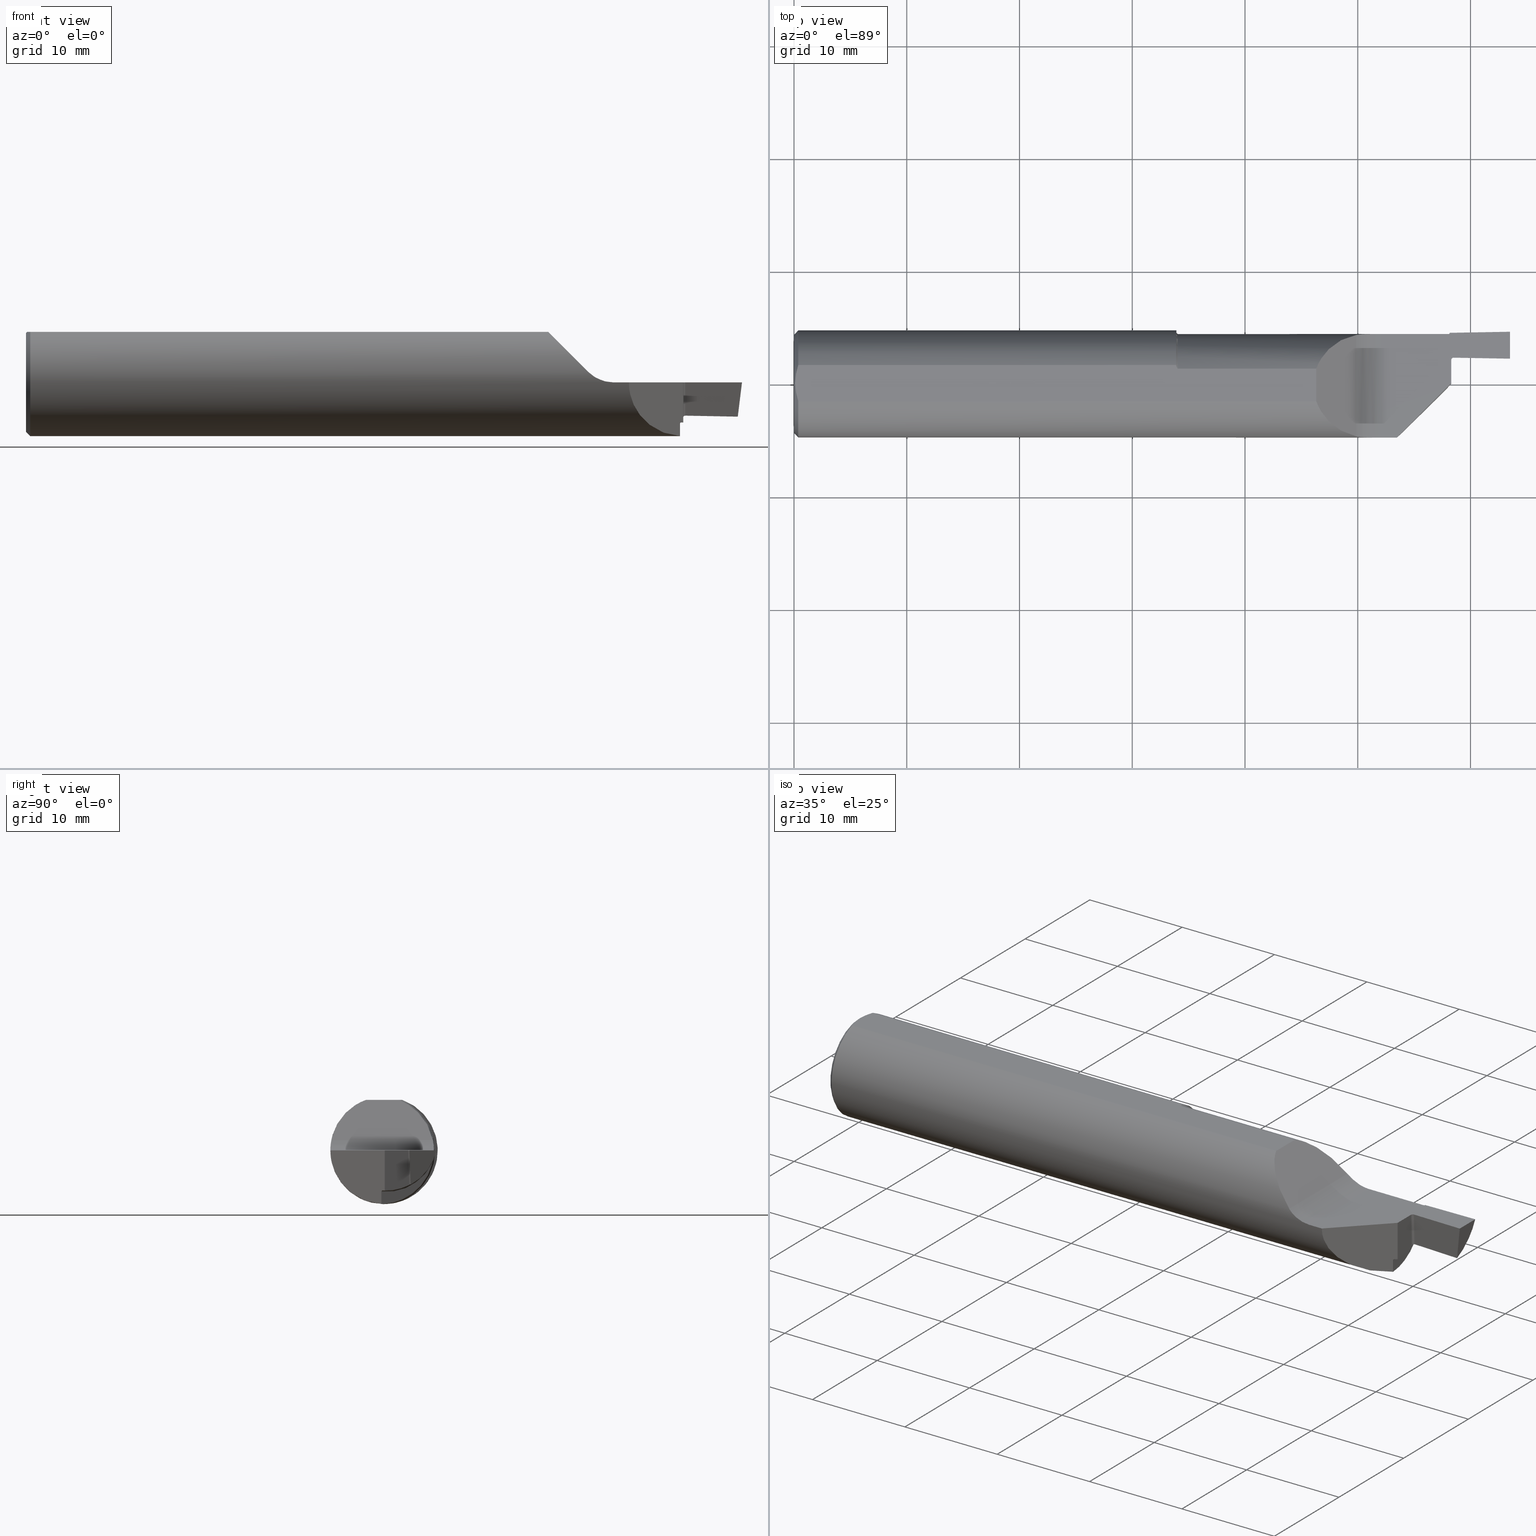
[diagram: canonical four-view strip — front | top / right | iso, engineering-drawing reading convention]
A machine part, canonical four-view strip (front | top / right | iso — engineering-drawing reading convention). The complete STEP part file that produces these views, byte-faithful:
ISO-10303-21;
HEADER;
FILE_DESCRIPTION (( 'STEP AP203' ),
    '1' );
FILE_NAME ('220103-FG375-093.STEP',
    '2024-06-10T23:36:27',
    ( '' ),
    ( '' ),
    'SwSTEP 2.0',
    'SolidWorks 2022',
    '' );
FILE_SCHEMA (( 'CONFIG_CONTROL_DESIGN' ));
ENDSEC;

DATA;
#1 = CARTESIAN_POINT ( 'NONE',  ( 2.283393038587651080, -0.008956961412348769108, 0.03500000000000000333 ) ) ;
#2 = FACE_OUTER_BOUND ( 'NONE', #832, .T. ) ;
#3 = DIRECTION ( 'NONE',  ( 0.7071067811865492381, 0.000000000000000000, -0.7071067811865459074 ) ) ;
#4 = DIRECTION ( 'NONE',  ( 0.7071067811865467956, 8.659560562354943952E-17, 0.7071067811865483499 ) ) ;
#5 = CARTESIAN_POINT ( 'NONE',  ( 2.284999999999999698, -0.01315076164021994516, 0.000000000000000000 ) ) ;
#6 = ADVANCED_FACE ( 'NONE', ( #578 ), #565, .F. ) ;
#7 = VERTEX_POINT ( 'NONE', #719 ) ;
#8 = EDGE_CURVE ( 'NONE', #564, #22, #153, .T. ) ;
#9 = AXIS2_PLACEMENT_3D ( 'NONE', #112, #381, #49 ) ;
#10 =( BOUNDED_CURVE ( )  B_SPLINE_CURVE ( 3, ( #740, #207, #790, #139 ),
 .UNSPECIFIED., .F., .T. ) 
 B_SPLINE_CURVE_WITH_KNOTS ( ( 4, 4 ),
 ( 1.544336988234594310, 2.023180629867346259 ),
 .UNSPECIFIED. ) 
 CURVE ( )  GEOMETRIC_REPRESENTATION_ITEM ( )  RATIONAL_B_SPLINE_CURVE ( ( 1.000000000000000000, 0.9809834981333445114, 0.9809834981333445114, 1.000000000000000000 ) ) 
 REPRESENTATION_ITEM ( '' )  );
#11 = LOCAL_TIME ( 16, 36, 27.00000000000000000, #305 ) ;
#12 = CARTESIAN_POINT ( 'NONE',  ( 2.300941329787759226, 0.09587476361423763471, -0.1159861687486509058 ) ) ;
#13 = CARTESIAN_POINT ( 'NONE',  ( 0.004994273251992769995, -0.02144446570098899885, 0.1763499999999999790 ) ) ;
#14 = DIRECTION ( 'NONE',  ( 1.000000000000000000, 0.000000000000000000, 0.000000000000000000 ) ) ;
#15 = VERTEX_POINT ( 'NONE', #755 ) ;
#16 = DIRECTION ( 'NONE',  ( -0.9998476951563914916, -0.01745240643726934937, -0.000000000000000000 ) ) ;
#17 = CARTESIAN_POINT ( 'NONE',  ( 1.338951377213943861, -0.002870465228317849431, -0.1873283842962036871 ) ) ;
#18 = ORIENTED_EDGE ( 'NONE', *, *, #813, .T. ) ;
#19 = EDGE_CURVE ( 'NONE', #495, #564, #426, .T. ) ;
#20 = CYLINDRICAL_SURFACE ( 'NONE', #807, 0.1749999999999999611 ) ;
#21 = CARTESIAN_POINT ( 'NONE',  ( 2.000000000000000000, 0.2873499999999999943, 6.488138984952624897E-16 ) ) ;
#22 = VERTEX_POINT ( 'NONE', #745 ) ;
#23 = DIRECTION ( 'NONE',  ( 0.000000000000000000, 0.000000000000000000, 1.000000000000000000 ) ) ;
#24 = VECTOR ( 'NONE', #550, 39.37007874015748143 ) ;
#25 = AXIS2_PLACEMENT_3D ( 'NONE', #730, #258, #129 ) ;
#26 = CARTESIAN_POINT ( 'NONE',  ( 2.035252298051418052, 0.1743543119172814015, 0.0008268482096370590503 ) ) ;
#27 = ADVANCED_FACE ( 'NONE', ( #145 ), #814, .F. ) ;
#28 = CARTESIAN_POINT ( 'NONE',  ( 1.337195659723047436, 0.007509920994524191089, -0.1872250261289547246 ) ) ;
#29 = ORIENTED_EDGE ( 'NONE', *, *, #813, .F. ) ;
#30 = CARTESIAN_POINT ( 'NONE',  ( 2.723046219305440552, 0.01475212378624846457, 0.03500000000000000333 ) ) ;
#31 = CARTESIAN_POINT ( 'NONE',  ( 2.281213636017340285, 0.1721177817524414400, -0.02890996178126952962 ) ) ;
#32 = ORIENTED_EDGE ( 'NONE', *, *, #613, .F. ) ;
#33 = CARTESIAN_POINT ( 'NONE',  ( 1.339391378728019832, 0.05054325299224062679, 0.1763499999999999512 ) ) ;
#34 = FACE_OUTER_BOUND ( 'NONE', #113, .T. ) ;
#35 = CARTESIAN_POINT ( 'NONE',  ( 1.334999999999999742, 0.05625817887700514802, -0.1791322750681638709 ) ) ;
#36 = EDGE_CURVE ( 'NONE', #340, #502, #809, .T. ) ;
#37 = ORIENTED_EDGE ( 'NONE', *, *, #412, .T. ) ;
#38 = APPLICATION_PROTOCOL_DEFINITION ( 'international standard', 'config_control_design', 1994, #380 ) ;
#39 = CARTESIAN_POINT ( 'NONE',  ( 2.051776695296636976, 0.1743492383597802509, 0.000000000000000000 ) ) ;
#40 = CIRCLE ( 'NONE', #608, 0.1875000000000001110 ) ;
#41 = CARTESIAN_POINT ( 'NONE',  ( 2.303210421468169233, 0.09583674312377118976, -0.1160315976012115252 ) ) ;
#42 = VERTEX_POINT ( 'NONE', #484 ) ;
#43 = PERSON_AND_ORGANIZATION ( #587, #698 ) ;
#44 = DIRECTION ( 'NONE',  ( 1.000000000000000000, 0.000000000000000000, 0.000000000000000000 ) ) ;
#45 = DIRECTION ( 'NONE',  ( -1.000000000000000000, -0.000000000000000000, -0.000000000000000000 ) ) ;
#46 = EDGE_LOOP ( 'NONE', ( #387, #427, #825, #449, #537 ) ) ;
#47 = CARTESIAN_POINT ( 'NONE',  ( 1.897454588124415586, 0.1576130183548816455, 0.1025454118755840249 ) ) ;
#48 = EDGE_CURVE ( 'NONE', #15, #631, #343, .T. ) ;
#49 = DIRECTION ( 'NONE',  ( 0.01745240643726858609, -0.9998476951563914916, 0.000000000000000000 ) ) ;
#50 = ORIENTED_EDGE ( 'NONE', *, *, #401, .F. ) ;
#51 = CARTESIAN_POINT ( 'NONE',  ( 0.000000000000000000, 0.000000000000000000, 0.000000000000000000 ) ) ;
#52 = EDGE_CURVE ( 'NONE', #150, #299, #556, .T. ) ;
#53 = ORIENTED_EDGE ( 'NONE', *, *, #183, .T. ) ;
#54 = DIRECTION ( 'NONE',  ( -1.000000000000000000, -0.000000000000000000, -0.000000000000000000 ) ) ;
#55 = B_SPLINE_CURVE_WITH_KNOTS ( 'NONE', 3,
 ( #276, #198, #72, #394, #338, #520 ),
 .UNSPECIFIED., .F., .F.,
 ( 4, 2, 4 ),
 ( 0.000000000000000000, 0.0001177800118684054018, 0.0002355600237368108037 ),
 .UNSPECIFIED. ) ;
#56 = ORIENTED_EDGE ( 'NONE', *, *, #761, .T. ) ;
#57 = DIRECTION ( 'NONE',  ( 0.000000000000000000, 1.000000000000000000, 0.000000000000000000 ) ) ;
#58 = DIRECTION ( 'NONE',  ( -0.7071067811865467956, 0.7071067811865483499, 0.000000000000000000 ) ) ;
#59 = EDGE_LOOP ( 'NONE', ( #265, #361, #211 ) ) ;
#60 = EDGE_CURVE ( 'NONE', #75, #687, #674, .T. ) ;
#61 = CARTESIAN_POINT ( 'NONE',  ( 2.286623822380981608, 0.1736596112874769227, -0.01887863862912420032 ) ) ;
#62 = CARTESIAN_POINT ( 'NONE',  ( 2.280279280228948657, 0.1694301354853124664, -0.04266691932675497484 ) ) ;
#63 = EDGE_LOOP ( 'NONE', ( #616, #777, #457, #781, #188, #322, #774, #416, #430 ) ) ;
#64 = DESIGN_CONTEXT ( 'detailed design', #156, 'design' ) ;
#65 = LOCAL_TIME ( 16, 36, 27.00000000000000000, #114 ) ;
#66 = PERSON_AND_ORGANIZATION_ROLE ( 'creator' ) ;
#67 = FACE_OUTER_BOUND ( 'NONE', #101, .T. ) ;
#68 = LINE ( 'NONE', #808, #522 ) ;
#69 = ORIENTED_EDGE ( 'NONE', *, *, #657, .F. ) ;
#70 = DIRECTION ( 'NONE',  ( 0.000000000000000000, 0.000000000000000000, -1.000000000000000000 ) ) ;
#71 = ADVANCED_FACE ( 'NONE', ( #603 ), #87, .T. ) ;
#72 = CARTESIAN_POINT ( 'NONE',  ( 2.284178583653680761, -0.008171416346319545013, -0.1413457714316157521 ) ) ;
#73 = ADVANCED_FACE ( 'NONE', ( #350 ), #749, .F. ) ;
#74 = DIRECTION ( 'NONE',  ( 0.000000000000000000, 0.000000000000000000, 1.000000000000000000 ) ) ;
#75 = VERTEX_POINT ( 'NONE', #274 ) ;
#76 = DIRECTION ( 'NONE',  ( 0.9998476951563912696, -0.01745240643727495600, 0.000000000000000000 ) ) ;
#77 = CARTESIAN_POINT ( 'NONE',  ( 1.846378452100291501, -0.1266201564974553662, 0.1536215478997087214 ) ) ;
#78 = DIRECTION ( 'NONE',  ( -1.000000000000000000, 0.000000000000000000, -0.000000000000000000 ) ) ;
#79 = EDGE_LOOP ( 'NONE', ( #320, #18, #526, #117 ) ) ;
#80 = AXIS2_PLACEMENT_3D ( 'NONE', #847, #138, #201 ) ;
#81 = CARTESIAN_POINT ( 'NONE',  ( 2.283393038587651080, -0.008956961412348769108, -0.1871357671378127974 ) ) ;
#82 = DIRECTION ( 'NONE',  ( -0.0006094513490877512219, 0.000000000000000000, 0.9999998142845092364 ) ) ;
#83 = CARTESIAN_POINT ( 'NONE',  ( 1.339074979391454923, -0.003245713992497605265, -0.1873222229057585064 ) ) ;
#84 = EDGE_CURVE ( 'NONE', #249, #505, #118, .T. ) ;
#85 = ORIENTED_EDGE ( 'NONE', *, *, #450, .F. ) ;
#86 = CARTESIAN_POINT ( 'NONE',  ( 2.295073310042312187, 0.08798154968022506295, -0.1202885657848134782 ) ) ;
#87 = PLANE ( 'NONE',  #107 ) ;
#88 = VERTEX_POINT ( 'NONE', #536 ) ;
#89 = CARTESIAN_POINT ( 'NONE',  ( 1.340000000000000080, -0.01315076164021994516, 0.000000000000000000 ) ) ;
#90 = CARTESIAN_POINT ( 'NONE',  ( 2.285212632768077512, 0.1732920003003683707, -0.01992593244285463874 ) ) ;
#91 = CARTESIAN_POINT ( 'NONE',  ( 0.000000000000000000, -0.1873499999999999888, 0.000000000000000000 ) ) ;
#92 = EDGE_LOOP ( 'NONE', ( #225, #369, #584, #255 ) ) ;
#93 = CARTESIAN_POINT ( 'NONE',  ( 1.335371528663762408, 0.05848268389675807810, 0.1763499999999999790 ) ) ;
#94 = VECTOR ( 'NONE', #541, 39.37007874015748143 ) ;
#95 = CARTESIAN_POINT ( 'NONE',  ( 2.000000000000000000, -0.2873499999999999943, 0.000000000000000000 ) ) ;
#96 = ORIENTED_EDGE ( 'NONE', *, *, #597, .F. ) ;
#97 = DIRECTION ( 'NONE',  ( 0.000000000000000000, 0.000000000000000000, 1.000000000000000000 ) ) ;
#98 = ADVANCED_FACE ( 'NONE', ( #355 ), #546, .T. ) ;
#99 = CARTESIAN_POINT ( 'NONE',  ( 2.035390929681094807, -0.1873549854116181856, 0.0008110107679984991354 ) ) ;
#100 = ADVANCED_FACE ( 'NONE', ( #680 ), #306, .F. ) ;
#101 = EDGE_LOOP ( 'NONE', ( #171, #636, #56, #219, #612, #464, #37, #392, #279, #110, #146, #32, #518 ) ) ;
#102 = CARTESIAN_POINT ( 'NONE',  ( 1.846487386027261035, 0.1137732605392144658, 0.1535126139727385763 ) ) ;
#103 = CARTESIAN_POINT ( 'NONE',  ( 0.000000000000000000, -0.06325108694718213631, 0.1763499999999999790 ) ) ;
#104 = CARTESIAN_POINT ( 'NONE',  ( 2.295005047996913738, 0.08407081971851022850, -0.008282853067502449554 ) ) ;
#105 = ORIENTED_EDGE ( 'NONE', *, *, #720, .T. ) ;
#106 = DATE_AND_TIME ( #709, #65 ) ;
#107 = AXIS2_PLACEMENT_3D ( 'NONE', #21, #277, #3 ) ;
#108 = DIRECTION ( 'NONE',  ( -1.000000000000000000, -0.000000000000000000, -0.000000000000000000 ) ) ;
#109 = FACE_OUTER_BOUND ( 'NONE', #788, .T. ) ;
#110 = ORIENTED_EDGE ( 'NONE', *, *, #401, .T. ) ;
#111 = EDGE_CURVE ( 'NONE', #325, #461, #605, .T. ) ;
#112 = CARTESIAN_POINT ( 'NONE',  ( 2.288112471912410406, 0.007160326986036305401, 0.03500000000000000333 ) ) ;
#113 = EDGE_LOOP ( 'NONE', ( #216, #246, #485, #85, #233, #837 ) ) ;
#114 = COORDINATED_UNIVERSAL_TIME_OFFSET ( 8, 0, .BEHIND. ) ;
#115 = CC_DESIGN_DATE_AND_TIME_ASSIGNMENT ( #451, #172, ( #801 ) ) ;
#116 = CARTESIAN_POINT ( 'NONE',  ( 2.294999999999999929, 0.002650000000000004349, -0.1399387451215776956 ) ) ;
#117 = ORIENTED_EDGE ( 'NONE', *, *, #304, .F. ) ;
#118 = B_SPLINE_CURVE_WITH_KNOTS ( 'NONE', 3,
 ( #532, #140, #686, #208 ),
 .UNSPECIFIED., .F., .F.,
 ( 4, 4 ),
 ( 0.002381199190277828726, 0.002506274907967739364 ),
 .UNSPECIFIED. ) ;
#119 = CARTESIAN_POINT ( 'NONE',  ( 2.104999999999999538, -0.1873499999999999888, -6.829619984160658046E-17 ) ) ;
#120 = AXIS2_PLACEMENT_3D ( 'NONE', #452, #833, #718 ) ;
#121 = VERTEX_POINT ( 'NONE', #433 ) ;
#122 = SECURITY_CLASSIFICATION_LEVEL ( 'unclassified' ) ;
#123 = DIRECTION ( 'NONE',  ( 0.000000000000000000, 0.000000000000000000, 1.000000000000000000 ) ) ;
#124 = CARTESIAN_POINT ( 'NONE',  ( 2.281794755679821041, 0.08260860505239303597, -0.1832479998057743309 ) ) ;
#125 = ORIENTED_EDGE ( 'NONE', *, *, #823, .T. ) ;
#126 = MANIFOLD_SOLID_BREP ( 'BF80796C-635B-4bd6-BBB9-54CE6A8BF315-GAAFaceID9', #362 ) ;
#127 = EDGE_CURVE ( 'NONE', #762, #542, #675, .T. ) ;
#128 = B_SPLINE_CURVE_WITH_KNOTS ( 'NONE', 3,
 ( #576, #301, #513, #308 ),
 .UNSPECIFIED., .F., .F.,
 ( 4, 4 ),
 ( 0.000000000000000000, 3.064243645287865564E-05 ),
 .UNSPECIFIED. ) ;
#129 = DIRECTION ( 'NONE',  ( 0.000000000000000000, -0.9993910123954978797, -0.03489418781261178354 ) ) ;
#130 = CARTESIAN_POINT ( 'NONE',  ( 2.485325741300552949, 0.09277947384183525548, -0.1195122464220158692 ) ) ;
#131 = ORIENTED_EDGE ( 'NONE', *, *, #436, .F. ) ;
#132 = CARTESIAN_POINT ( 'NONE',  ( 2.286851938762125336, 0.1737875172621722031, -0.01849460268407950372 ) ) ;
#133 = DIRECTION ( 'NONE',  ( 0.000000000000000000, 1.000000000000000000, 0.000000000000000000 ) ) ;
#134 = ORIENTED_EDGE ( 'NONE', *, *, #475, .F. ) ;
#135 = AXIS2_PLACEMENT_3D ( 'NONE', #409, #805, #78 ) ;
#136 = PRODUCT_DEFINITION_FORMATION_WITH_SPECIFIED_SOURCE ( 'ANY', '', #700, .NOT_KNOWN. ) ;
#137 = ADVANCED_FACE ( 'NONE', ( #109 ), #491, .F. ) ;
#138 = DIRECTION ( 'NONE',  ( -1.000000000000000000, -0.000000000000000000, -0.000000000000000000 ) ) ;
#139 = CARTESIAN_POINT ( 'NONE',  ( 2.294999999999999929, 0.08378666752628630143, -0.1223963044851301141 ) ) ;
#140 = CARTESIAN_POINT ( 'NONE',  ( 1.335000000000000187, 0.06629317938995302195, 0.1752365688409875943 ) ) ;
#141 = ORIENTED_EDGE ( 'NONE', *, *, #786, .T. ) ;
#142 = DIRECTION ( 'NONE',  ( 1.000000000000000000, 0.000000000000000000, 0.000000000000000000 ) ) ;
#143 = EDGE_CURVE ( 'NONE', #299, #502, #767, .T. ) ;
#144 = CARTESIAN_POINT ( 'NONE',  ( 0.000000000000000000, 2.110678758330468070E-17, 0.1723500000000004195 ) ) ;
#145 = FACE_OUTER_BOUND ( 'NONE', #841, .T. ) ;
#146 = ORIENTED_EDGE ( 'NONE', *, *, #84, .F. ) ;
#147 = CARTESIAN_POINT ( 'NONE',  ( 2.051776695296636976, 0.2873499999999999943, 0.1250000000000000000 ) ) ;
#148 = EDGE_CURVE ( 'NONE', #395, #481, #649, .T. ) ;
#149 = DIRECTION ( 'NONE',  ( 0.000000000000000000, -0.03490480639812536257, 0.9993906415863165194 ) ) ;
#150 = VERTEX_POINT ( 'NONE', #41 ) ;
#151 = DIRECTION ( 'NONE',  ( 0.000000000000000000, 1.000000000000000000, 0.000000000000000000 ) ) ;
#152 = CARTESIAN_POINT ( 'NONE',  ( 1.963388347648318710, 0.1707400671470789832, 0.03661165235168143545 ) ) ;
#153 = LINE ( 'NONE', #218, #806 ) ;
#154 = ORIENTED_EDGE ( 'NONE', *, *, #327, .F. ) ;
#155 = EDGE_CURVE ( 'NONE', #664, #325, #504, .T. ) ;
#156 = APPLICATION_CONTEXT ( 'configuration controlled 3d designs of mechanical parts and assemblies' ) ;
#157 = CARTESIAN_POINT ( 'NONE',  ( 2.295001483111417162, 0.08393638946052463246, -0.0002790132549058363951 ) ) ;
#158 = CARTESIAN_POINT ( 'NONE',  ( 1.339399018889529280, -0.003959314961772966192, -0.1873084986825458431 ) ) ;
#159 = ORIENTED_EDGE ( 'NONE', *, *, #52, .F. ) ;
#160 = DIRECTION ( 'NONE',  ( 0.01745240643726858609, -0.9998476951563914916, 0.000000000000000000 ) ) ;
#161 = CARTESIAN_POINT ( 'NONE',  ( 1.812499999999999778, -0.004437576883792758962, -0.1872974383471392446 ) ) ;
#162 = ORIENTED_EDGE ( 'NONE', *, *, #356, .T. ) ;
#163 = EDGE_CURVE ( 'NONE', #481, #7, #454, .T. ) ;
#164 = CARTESIAN_POINT ( 'NONE',  ( 1.336737058446424209, 0.05385394031618935540, 0.1763500000000000068 ) ) ;
#165 = AXIS2_PLACEMENT_3D ( 'NONE', #418, #545, #684 ) ;
#166 = EDGE_CURVE ( 'NONE', #348, #421, #496, .T. ) ;
#167 = CARTESIAN_POINT ( 'NONE',  ( 1.336913895729895607, 0.01061167438636866772, -0.1870750754728970622 ) ) ;
#168 = ORIENTED_EDGE ( 'NONE', *, *, #204, .F. ) ;
#169 = DIRECTION ( 'NONE',  ( 1.000000000000000000, 0.000000000000000000, 0.000000000000000000 ) ) ;
#170 = CARTESIAN_POINT ( 'NONE',  ( 2.485325741300552949, 0.09277947384183525548, -0.1195122464220158692 ) ) ;
#171 = ORIENTED_EDGE ( 'NONE', *, *, #155, .F. ) ;
#172 = DATE_TIME_ROLE ( 'creation_date' ) ;
#173 = LINE ( 'NONE', #103, #483 ) ;
#174 = CARTESIAN_POINT ( 'NONE',  ( 2.285070978652790963, 0.1732857018005488914, -0.01994229615775050535 ) ) ;
#175 = EDGE_CURVE ( 'NONE', #732, #594, #540, .T. ) ;
#176 = ORIENTED_EDGE ( 'NONE', *, *, #321, .F. ) ;
#177 = CARTESIAN_POINT ( 'NONE',  ( 1.337958805214830571, 0.05174923270990745144, 0.1763499999999999235 ) ) ;
#178 = AXIS2_PLACEMENT_3D ( 'NONE', #223, #760, #610 ) ;
#179 = CARTESIAN_POINT ( 'NONE',  ( 1.335009689054889037, 0.06325108694718309388, 0.1763499999999996737 ) ) ;
#180 = SECURITY_CLASSIFICATION ( '', '', #122 ) ;
#181 = CARTESIAN_POINT ( 'NONE',  ( 2.282316953646207569, 0.1728069946408152813, -0.02401930439937509376 ) ) ;
#182 = ORIENTED_EDGE ( 'NONE', *, *, #191, .F. ) ;
#183 = EDGE_CURVE ( 'NONE', #75, #325, #40, .T. ) ;
#184 = PERSON_AND_ORGANIZATION_ROLE ( 'creator' ) ;
#185 = CARTESIAN_POINT ( 'NONE',  ( 2.290536641306539334, -0.001813358693460846195, -0.1397814340830136892 ) ) ;
#186 = EDGE_LOOP ( 'NONE', ( #853, #606, #237, #650 ) ) ;
#187 = DIRECTION ( 'NONE',  ( -0.0006090802009083879243, -0.03489418134011375294, 0.9993908270190957621 ) ) ;
#188 = ORIENTED_EDGE ( 'NONE', *, *, #559, .T. ) ;
#189 =( BOUNDED_CURVE ( )  B_SPLINE_CURVE ( 3, ( #500, #185, #240, #116 ),
 .UNSPECIFIED., .F., .F. ) 
 B_SPLINE_CURVE_WITH_KNOTS ( ( 4, 4 ),
 ( 1.506729512058387010, 1.544336988234593422 ),
 .UNSPECIFIED. ) 
 CURVE ( )  GEOMETRIC_REPRESENTATION_ITEM ( )  RATIONAL_B_SPLINE_CURVE ( ( 1.000000000000000000, 0.9998821432840196977, 0.9998821432840196977, 1.000000000000000000 ) ) 
 REPRESENTATION_ITEM ( '' )  );
#190 = CALENDAR_DATE ( 2024, 10, 6 ) ;
#191 = EDGE_CURVE ( 'NONE', #510, #732, #448, .T. ) ;
#192 = CARTESIAN_POINT ( 'NONE',  ( 2.295004234609788085, 0.08404793412690703125, -0.006948231403009231914 ) ) ;
#193 = CARTESIAN_POINT ( 'NONE',  ( 2.294999999999999929, 0.002650000000000004349, -0.1873499999999999888 ) ) ;
#194 = AXIS2_PLACEMENT_3D ( 'NONE', #503, #44, #316 ) ;
#195 = ORIENTED_EDGE ( 'NONE', *, *, #166, .F. ) ;
#196 =( GEOMETRIC_REPRESENTATION_CONTEXT ( 3 ) GLOBAL_UNCERTAINTY_ASSIGNED_CONTEXT ( ( #346 ) ) GLOBAL_UNIT_ASSIGNED_CONTEXT ( ( #575, #567, #300 ) ) REPRESENTATION_CONTEXT ( 'NONE', 'WORKASPACE' ) );
#197 = CARTESIAN_POINT ( 'NONE',  ( 2.286046350888864875, 0.1734291575718139300, -0.01955485721375198674 ) ) ;
#198 = CARTESIAN_POINT ( 'NONE',  ( 2.283393038587651080, -0.008956961412348769108, -0.1427136421016734213 ) ) ;
#199 = VERTEX_POINT ( 'NONE', #857 ) ;
#200 = PERSON_AND_ORGANIZATION ( #587, #698 ) ;
#201 = DIRECTION ( 'NONE',  ( 0.000000000000000000, 0.000000000000000000, 1.000000000000000000 ) ) ;
#202 = CARTESIAN_POINT ( 'NONE',  ( 1.963388347648318932, -0.1837378823544007778, 0.03661165235168151871 ) ) ;
#203 = ORIENTED_EDGE ( 'NONE', *, *, #256, .F. ) ;
#204 = EDGE_CURVE ( 'NONE', #495, #770, #10, .T. ) ;
#205 = DATE_AND_TIME ( #397, #685 ) ;
#206 = CARTESIAN_POINT ( 'NONE',  ( 2.288821424592997200, 0.1757024655210977782, -0.01227120754215230841 ) ) ;
#207 = CARTESIAN_POINT ( 'NONE',  ( 2.295000000000000373, 0.03084718834612590332, -0.1406848845743961240 ) ) ;
#208 = CARTESIAN_POINT ( 'NONE',  ( 1.335009689054889037, 0.06325108694718309388, 0.1763499999999996737 ) ) ;
#209 = AXIS2_PLACEMENT_3D ( 'NONE', #744, #399, #531 ) ;
#210 = VECTOR ( 'NONE', #76, 39.37007874015748854 ) ;
#211 = ORIENTED_EDGE ( 'NONE', *, *, #127, .F. ) ;
#212 = EDGE_CURVE ( 'NONE', #7, #664, #701, .T. ) ;
#213 = DIRECTION ( 'NONE',  ( -0.9998476951563914916, -0.01745240643726934937, 0.000000000000000000 ) ) ;
#214 = DIRECTION ( 'NONE',  ( 0.7071067811865483499, 0.7071067811865467956, 0.000000000000000000 ) ) ;
#215 = CARTESIAN_POINT ( 'NONE',  ( 2.303379501196029633, 0.1055233142454422290, -0.3934609555193291364 ) ) ;
#216 = ORIENTED_EDGE ( 'NONE', *, *, #460, .T. ) ;
#217 = CARTESIAN_POINT ( 'NONE',  ( 1.823649999999999771, 0.05054325299224043250, 0.1763499999999999790 ) ) ;
#218 = CARTESIAN_POINT ( 'NONE',  ( 2.294999999999999929, -0.2873499999999999943, 0.000000000000000000 ) ) ;
#219 = ORIENTED_EDGE ( 'NONE', *, *, #191, .T. ) ;
#220 = DIRECTION ( 'NONE',  ( -0.000000000000000000, -1.000000000000000000, -0.000000000000000000 ) ) ;
#221 = CARTESIAN_POINT ( 'NONE',  ( 0.000000000000000000, 0.000000000000000000, -0.1723500000000004195 ) ) ;
#222 = ADVANCED_FACE ( 'NONE', ( #2 ), #413, .F. ) ;
#223 = CARTESIAN_POINT ( 'NONE',  ( 2.288112471912410406, 0.007160326986036302799, 0.03500000000000000333 ) ) ;
#224 = ADVANCED_BREP_SHAPE_REPRESENTATION ( '220103-FG375-093', ( #126, #405 ), #196 ) ;
#225 = ORIENTED_EDGE ( 'NONE', *, *, #19, .F. ) ;
#226 = AXIS2_PLACEMENT_3D ( 'NONE', #147, #151, #819 ) ;
#227 = CARTESIAN_POINT ( 'NONE',  ( 1.335009689054889037, 0.06325108694718309388, 0.1763499999999996737 ) ) ;
#228 = CARTESIAN_POINT ( 'NONE',  ( 1.339598998625805004, -0.004437576883793187439, -0.1872974383471391890 ) ) ;
#229 = ORIENTED_EDGE ( 'NONE', *, *, #19, .T. ) ;
#230 = CARTESIAN_POINT ( 'NONE',  ( 2.104999999999999538, -0.1873499999999999888, -6.829619984160658046E-17 ) ) ;
#231 = CARTESIAN_POINT ( 'NONE',  ( 1.335166595942603118, 0.04439214968827082108, -0.1824345190479061685 ) ) ;
#232 = EDGE_CURVE ( 'NONE', #423, #382, #55, .T. ) ;
#233 = ORIENTED_EDGE ( 'NONE', *, *, #294, .F. ) ;
#234 = ADVANCED_FACE ( 'NONE', ( #593 ), #263, .F. ) ;
#235 = LINE ( 'NONE', #292, #566 ) ;
#236 = DIRECTION ( 'NONE',  ( 0.000000000000000000, 0.000000000000000000, -1.000000000000000000 ) ) ;
#237 = ORIENTED_EDGE ( 'NONE', *, *, #148, .T. ) ;
#238 = PERSON_AND_ORGANIZATION ( #587, #698 ) ;
#239 = CIRCLE ( 'NONE', #738, 0.008000000000000024453 ) ;
#240 = CARTESIAN_POINT ( 'NONE',  ( 2.292767567870056311, 0.0004175678700561035340, -0.1398807027853394280 ) ) ;
#241 = CARTESIAN_POINT ( 'NONE',  ( 2.284087404967629187, 0.1732350849020085903, -0.02041404061935647371 ) ) ;
#242 = ORIENTED_EDGE ( 'NONE', *, *, #60, .F. ) ;
#243 = PERSON_AND_ORGANIZATION ( #587, #698 ) ;
#244 = CARTESIAN_POINT ( 'NONE',  ( 2.295039367740882241, 0.08602829363184989753, -0.0002059503887036876911 ) ) ;
#245 = CARTESIAN_POINT ( 'NONE',  ( 1.336187288558007502, 0.01991515597133086679, -0.1863922880607652710 ) ) ;
#246 = ORIENTED_EDGE ( 'NONE', *, *, #127, .T. ) ;
#247 = CARTESIAN_POINT ( 'NONE',  ( 2.303139705841341200, 0.09178544757610611338, -6.189343110645596508E-17 ) ) ;
#248 = DIRECTION ( 'NONE',  ( -1.000000000000000000, -0.000000000000000000, -0.000000000000000000 ) ) ;
#249 = VERTEX_POINT ( 'NONE', #324 ) ;
#250 = CARTESIAN_POINT ( 'NONE',  ( 2.298951142015535076, 0.09099751733156083433, -3.006366610617396904E-05 ) ) ;
#251 = AXIS2_PLACEMENT_3D ( 'NONE', #89, #758, #23 ) ;
#252 = ORIENTED_EDGE ( 'NONE', *, *, #625, .F. ) ;
#253 =( BOUNDED_CURVE ( )  B_SPLINE_CURVE ( 3, ( #474, #267, #798, #668 ),
 .UNSPECIFIED., .F., .T. ) 
 B_SPLINE_CURVE_WITH_KNOTS ( ( 4, 4 ),
 ( 1.594484567641964334, 1.618623265893552432 ),
 .UNSPECIFIED. ) 
 CURVE ( )  GEOMETRIC_REPRESENTATION_ITEM ( )  RATIONAL_B_SPLINE_CURVE ( ( 1.000000000000000000, 0.9999514441933211595, 0.9999514441933211595, 1.000000000000000000 ) ) 
 REPRESENTATION_ITEM ( '' )  );
#254 = LENGTH_MEASURE_WITH_UNIT ( LENGTH_MEASURE( 0.02539999999999999897 ), #851 );
#255 = ORIENTED_EDGE ( 'NONE', *, *, #8, .F. ) ;
#256 = EDGE_CURVE ( 'NONE', #88, #687, #586, .T. ) ;
#257 = EDGE_CURVE ( 'NONE', #631, #340, #712, .T. ) ;
#258 = DIRECTION ( 'NONE',  ( -0.0006090802009083879243, -0.03489418134011375294, 0.9993908270190957621 ) ) ;
#259 = CARTESIAN_POINT ( 'NONE',  ( 1.823649999999999771, -0.06325108694718213631, 0.1763499999999999790 ) ) ;
#260 = ORIENTED_EDGE ( 'NONE', *, *, #143, .F. ) ;
#261 = CARTESIAN_POINT ( 'NONE',  ( 1.335000000000000187, 0.000000000000000000, 0.000000000000000000 ) ) ;
#262 = VECTOR ( 'NONE', #442, 39.37007874015748143 ) ;
#263 = PLANE ( 'NONE',  #579 ) ;
#264 = CIRCLE ( 'NONE', #635, 0.1873499999999999888 ) ;
#265 = ORIENTED_EDGE ( 'NONE', *, *, #839, .T. ) ;
#266 = TOROIDAL_SURFACE ( 'NONE', #251, 0.1925000000000001432, 0.005000000000000049544 ) ;
#267 = CARTESIAN_POINT ( 'NONE',  ( 2.283340458535739081, -0.005944652255764125079, -0.1872617317037810758 ) ) ;
#268 = EDGE_CURVE ( 'NONE', #770, #22, #678, .T. ) ;
#269 = CARTESIAN_POINT ( 'NONE',  ( 1.340000000000000080, -0.004437576883793904747, -0.1872974383471392446 ) ) ;
#270 = EDGE_LOOP ( 'NONE', ( #379, #96, #443, #623, #229, #708 ) ) ;
#271 = PERSON_AND_ORGANIZATION ( #587, #698 ) ;
#272 = CARTESIAN_POINT ( 'NONE',  ( 2.283113233436628420, 0.007073064953849954317, 0.03500000000000000333 ) ) ;
#273 = DIRECTION ( 'NONE',  ( -0.000000000000000000, -0.000000000000000000, 1.000000000000000000 ) ) ;
#274 = CARTESIAN_POINT ( 'NONE',  ( 1.340000000000000080, 0.05054325299224017576, 0.1763500000000000068 ) ) ;
#275 = CARTESIAN_POINT ( 'NONE',  ( 2.295002345047223891, 0.08398157355072718988, -0.002944330584369588520 ) ) ;
#276 = CARTESIAN_POINT ( 'NONE',  ( 2.283393038587651080, -0.008956961412348769108, -0.1442845781537732130 ) ) ;
#277 = DIRECTION ( 'NONE',  ( 0.7071067811865459074, -0.000000000000000000, 0.7071067811865492381 ) ) ;
#278 = AXIS2_PLACEMENT_3D ( 'NONE', #644, #447, #629 ) ;
#279 = ORIENTED_EDGE ( 'NONE', *, *, #561, .T. ) ;
#280 = FACE_OUTER_BOUND ( 'NONE', #713, .T. ) ;
#281 = CARTESIAN_POINT ( 'NONE',  ( 0.01157250466904289656, -0.05309883057899358189, 0.1763500000000000068 ) ) ;
#282 = CARTESIAN_POINT ( 'NONE',  ( 1.340000000000000080, -0.004437576883793904747, -0.1872974383471392446 ) ) ;
#283 = FACE_OUTER_BOUND ( 'NONE', #63, .T. ) ;
#284 = CARTESIAN_POINT ( 'NONE',  ( 0.003999999999999476197, 2.550090563692220756E-17, 0.1763499999999999790 ) ) ;
#285 = CARTESIAN_POINT ( 'NONE',  ( 1.338620484590426152, -0.001745530422709880031, -0.1873433696669191129 ) ) ;
#286 = ORIENTED_EDGE ( 'NONE', *, *, #344, .T. ) ;
#287 = CARTESIAN_POINT ( 'NONE',  ( 0.9958286716179119979, -0.01315076164021992781, 0.000000000000000000 ) ) ;
#288 = DIRECTION ( 'NONE',  ( 0.01744177490282172033, 0.9992386149554827179, 0.03489949670250104552 ) ) ;
#289 = ORIENTED_EDGE ( 'NONE', *, *, #334, .T. ) ;
#290 = CIRCLE ( 'NONE', #403, 0.1873499999999999888 ) ;
#291 = AXIS2_PLACEMENT_3D ( 'NONE', #287, #695, #349 ) ;
#292 = CARTESIAN_POINT ( 'NONE',  ( 2.449477741060713587, 0.1036021726831220791, -0.4114707791253824354 ) ) ;
#293 = CARTESIAN_POINT ( 'NONE',  ( 2.288308009098484419, -0.004041990901515791351, -0.1396409741130502091 ) ) ;
#294 = EDGE_CURVE ( 'NONE', #22, #521, #239, .T. ) ;
#295 = DIRECTION ( 'NONE',  ( -1.000000000000000000, -0.000000000000000000, -0.000000000000000000 ) ) ;
#296 = VERTEX_POINT ( 'NONE', #673 ) ;
#297 = FACE_OUTER_BOUND ( 'NONE', #815, .T. ) ;
#298 = CARTESIAN_POINT ( 'NONE',  ( 2.280279280228948657, 0.1694301354853124664, -0.04266691932675497484 ) ) ;
#299 = VERTEX_POINT ( 'NONE', #130 ) ;
#300 =( NAMED_UNIT ( * ) SI_UNIT ( $, .STERADIAN. ) SOLID_ANGLE_UNIT ( ) );
#301 = CARTESIAN_POINT ( 'NONE',  ( 2.294999999999999929, 0.08415348288747674654, -0.1222180596927485013 ) ) ;
#302 = CARTESIAN_POINT ( 'NONE',  ( 1.338007575457989207, 0.001316809534356252120, -0.1873516452513924180 ) ) ;
#303 = ORIENTED_EDGE ( 'NONE', *, *, #862, .T. ) ;
#304 = EDGE_CURVE ( 'NONE', #150, #521, #342, .T. ) ;
#305 = COORDINATED_UNIVERSAL_TIME_OFFSET ( 8, 0, .BEHIND. ) ;
#306 = TOROIDAL_SURFACE ( 'NONE', #178, 0.1799999999999999656, 0.005000000000000000104 ) ;
#307 = CC_DESIGN_APPROVAL ( #618, ( #180 ) ) ;
#308 = CARTESIAN_POINT ( 'NONE',  ( 2.295074270076920886, 0.08487423600064146478, -0.1218638095382053310 ) ) ;
#309 = ORIENTED_EDGE ( 'NONE', *, *, #84, .T. ) ;
#310 =( BOUNDED_CURVE ( )  B_SPLINE_CURVE ( 3, ( #445, #47, #102, #842 ),
 .UNSPECIFIED., .F., .F. ) 
 B_SPLINE_CURVE_WITH_KNOTS ( ( 4, 4 ),
 ( 4.908913714375442439, 5.936585895212762587 ),
 .UNSPECIFIED. ) 
 CURVE ( )  GEOMETRIC_REPRESENTATION_ITEM ( )  RATIONAL_B_SPLINE_CURVE ( ( 1.000000000000000000, 0.9139102658081098562, 0.9139102658081098562, 1.000000000000000000 ) ) 
 REPRESENTATION_ITEM ( '' )  );
#311 = DATE_AND_TIME ( #512, #331 ) ;
#312 = EDGE_CURVE ( 'NONE', #421, #348, #468, .T. ) ;
#313 = LINE ( 'NONE', #843, #318 ) ;
#314 = CARTESIAN_POINT ( 'NONE',  ( 2.280263259456356995, 0.1703479649310262467, -0.03873933031280969025 ) ) ;
#315 = EDGE_LOOP ( 'NONE', ( #176, #195, #105, #134, #529 ) ) ;
#316 = DIRECTION ( 'NONE',  ( 0.000000000000000000, 0.000000000000000000, -1.000000000000000000 ) ) ;
#317 = ORIENTED_EDGE ( 'NONE', *, *, #786, .F. ) ;
#318 = VECTOR ( 'NONE', #187, 39.37007874015748143 ) ;
#319 = CARTESIAN_POINT ( 'NONE',  ( 2.295938313768146610, 0.08809173989208883560, -0.0001333563681705186507 ) ) ;
#320 = ORIENTED_EDGE ( 'NONE', *, *, #52, .T. ) ;
#321 = EDGE_CURVE ( 'NONE', #421, #42, #863, .T. ) ;
#322 = ORIENTED_EDGE ( 'NONE', *, *, #163, .T. ) ;
#323 = CARTESIAN_POINT ( 'NONE',  ( 2.285671421012806181, 0.1733171957776447614, -0.01987394689501126299 ) ) ;
#324 = CARTESIAN_POINT ( 'NONE',  ( 1.335000000000000187, 0.06780158507429057124, 0.1746509878626906764 ) ) ;
#325 = VERTEX_POINT ( 'NONE', #269 ) ;
#326 = APPROVAL_DATE_TIME ( #205, #618 ) ;
#327 = EDGE_CURVE ( 'NONE', #594, #88, #757, .T. ) ;
#328 = CARTESIAN_POINT ( 'NONE',  ( 2.287448397247954013, 0.1741700931976156719, -0.01732619941480726886 ) ) ;
#329 = AXIS2_PLACEMENT_3D ( 'NONE', #663, #659, #727 ) ;
#330 = CARTESIAN_POINT ( 'NONE',  ( 2.280625403376427052, 0.1496007536467078847, -0.1275210963487855842 ) ) ;
#331 = LOCAL_TIME ( 16, 36, 27.00000000000000000, #771 ) ;
#332 = ORIENTED_EDGE ( 'NONE', *, *, #232, .F. ) ;
#333 = CARTESIAN_POINT ( 'NONE',  ( 0.01499999999999943046, 0.06325108694718213631, 0.1763499999999999790 ) ) ;
#334 = EDGE_CURVE ( 'NONE', #594, #199, #535, .T. ) ;
#335 = DIRECTION ( 'NONE',  ( -0.7071067811865483499, -0.7071067811865467956, 0.000000000000000000 ) ) ;
#336 = CARTESIAN_POINT ( 'NONE',  ( 2.294999999999999929, 0.002650000000000004349, -0.1873499999999999888 ) ) ;
#337 = CARTESIAN_POINT ( 'NONE',  ( 2.284999999999999698, 0.1743492383597802786, 0.000000000000000000 ) ) ;
#338 = CARTESIAN_POINT ( 'NONE',  ( 2.287207933615704292, -0.005142066384295617722, -0.1395716416459386600 ) ) ;
#339 = CARTESIAN_POINT ( 'NONE',  ( 2.720053754966592408, 0.1861902909404172246, 0.000000000000000000 ) ) ;
#340 = VERTEX_POINT ( 'NONE', #404 ) ;
#341 = CARTESIAN_POINT ( 'NONE',  ( 2.104999999999999538, -0.1873500000000000165, -0.1056296794908331560 ) ) ;
#342 = LINE ( 'NONE', #602, #458 ) ;
#343 = LINE ( 'NONE', #419, #24 ) ;
#344 = EDGE_CURVE ( 'NONE', #510, #564, #68, .T. ) ;
#345 = AXIS2_PLACEMENT_3D ( 'NONE', #539, #692, #82 ) ;
#346 = UNCERTAINTY_MEASURE_WITH_UNIT (LENGTH_MEASURE( 1.000000000000000082E-05 ), #575, 'distance_accuracy_value', 'NONE');
#347 = AXIS2_PLACEMENT_3D ( 'NONE', #459, #54, #123 ) ;
#348 = VERTEX_POINT ( 'NONE', #221 ) ;
#349 = DIRECTION ( 'NONE',  ( 0.000000000000000000, 0.000000000000000000, 1.000000000000000000 ) ) ;
#350 = FACE_OUTER_BOUND ( 'NONE', #79, .T. ) ;
#351 = ORIENTED_EDGE ( 'NONE', *, *, #450, .T. ) ;
#352 = PRODUCT_RELATED_PRODUCT_CATEGORY ( 'detail', '', ( #700 ) ) ;
#353 = CARTESIAN_POINT ( 'NONE',  ( 0.01499999999999943046, -0.06325108694718213631, 0.1763499999999999790 ) ) ;
#354 = CARTESIAN_POINT ( 'NONE',  ( 1.975456747076115072, 0.1726394736848242961, 0.02567045653326194277 ) ) ;
#355 = FACE_OUTER_BOUND ( 'NONE', #750, .T. ) ;
#356 = EDGE_CURVE ( 'NONE', #42, #845, #661, .T. ) ;
#357 = CARTESIAN_POINT ( 'NONE',  ( 2.295072674751077457, 0.08998801236111224344, -0.1192461673762845453 ) ) ;
#358 = CARTESIAN_POINT ( 'NONE',  ( 2.019197208109889896, 0.1743125433629942322, 0.004042964882075219743 ) ) ;
#359 = CARTESIAN_POINT ( 'NONE',  ( 2.285000000000027232, 0.1732847714490061974, -0.01995098999388586827 ) ) ;
#360 = B_SPLINE_CURVE_WITH_KNOTS ( 'NONE', 3,
 ( #152, #552, #354, #614, #549, #822, #358, #26, #827, #39 ),
 .UNSPECIFIED., .F., .F.,
 ( 4, 2, 2, 2, 4 ),
 ( 0.000000000000000000, 0.0006203411018093673082, 0.001240682203618734616, 0.001861023305428101925, 0.002481364407237469233 ),
 .UNSPECIFIED. ) ;
#361 = ORIENTED_EDGE ( 'NONE', *, *, #489, .T. ) ;
#362 = CLOSED_SHELL ( 'NONE', ( #473, #27, #577, #137, #71, #795, #222, #722, #100, #785, #509, #234, #533, #414, #585, #73, #384, #386, #848, #98, #6, #811 ) ) ;
#363 = LOCAL_TIME ( 16, 36, 27.00000000000000000, #802 ) ;
#364 = CARTESIAN_POINT ( 'NONE',  ( 2.051776695296636976, -0.1873499999999999888, 0.000000000000000000 ) ) ;
#365 = CARTESIAN_POINT ( 'NONE',  ( 2.281542994097592203, 0.1724143581737317688, -0.02693868460152580233 ) ) ;
#366 = ORIENTED_EDGE ( 'NONE', *, *, #212, .F. ) ;
#367 = PERSON_AND_ORGANIZATION_ROLE ( 'design_owner' ) ;
#368 = CARTESIAN_POINT ( 'NONE',  ( 1.996326790910569082, -0.1869473204897925123, 0.01267266404239195815 ) ) ;
#369 = ORIENTED_EDGE ( 'NONE', *, *, #204, .T. ) ;
#370 = DIRECTION ( 'NONE',  ( 1.000000000000000000, 0.000000000000000000, 0.000000000000000000 ) ) ;
#371 = CARTESIAN_POINT ( 'NONE',  ( 2.294999999999999929, 0.002650000000000004349, -0.1399387451215776956 ) ) ;
#372 = CARTESIAN_POINT ( 'NONE',  ( 2.011462618758882659, -0.1872671557635287864, 0.006396047567269131165 ) ) ;
#373 = ORIENTED_EDGE ( 'NONE', *, *, #707, .T. ) ;
#374 = AXIS2_PLACEMENT_3D ( 'NONE', #609, #476, #796 ) ;
#375 = APPROVAL_DATE_TIME ( #106, #515 ) ;
#376 = CARTESIAN_POINT ( 'NONE',  ( 2.283393038587651080, -0.008956961412348769108, -0.1442845781537732130 ) ) ;
#377 = CARTESIAN_POINT ( 'NONE',  ( 2.019406815221594709, -0.1873142647345006628, 0.003989301195303232572 ) ) ;
#378 = B_SPLINE_CURVE_WITH_KNOTS ( 'NONE', 3,
 ( #530, #192, #601, #275, #393, #743 ),
 .UNSPECIFIED., .F., .F.,
 ( 4, 2, 4 ),
 ( 0.02300346263442270070, 0.02310447888298197694, 0.02320549513154125665 ),
 .UNSPECIFIED. ) ;
#379 = ORIENTED_EDGE ( 'NONE', *, *, #761, .F. ) ;
#380 = APPLICATION_CONTEXT ( 'configuration controlled 3d designs of mechanical parts and assemblies' ) ;
#381 = DIRECTION ( 'NONE',  ( 0.9998476951563914916, 0.01745240643726934937, -0.000000000000000000 ) ) ;
#382 = VERTEX_POINT ( 'NONE', #293 ) ;
#383 = DIMENSIONAL_EXPONENTS ( 1.000000000000000000, 0.000000000000000000, 0.000000000000000000, 0.000000000000000000, 0.000000000000000000, 0.000000000000000000, 0.000000000000000000 ) ;
#384 = ADVANCED_FACE ( 'NONE', ( #490 ), #425, .F. ) ;
#385 = CARTESIAN_POINT ( 'NONE',  ( 2.301046502187419573, 0.09182198458179337275, -4.300531544362698708E-17 ) ) ;
#386 = ADVANCED_FACE ( 'NONE', ( #479 ), #748, .F. ) ;
#387 = ORIENTED_EDGE ( 'NONE', *, *, #312, .F. ) ;
#388 = SHAPE_DEFINITION_REPRESENTATION ( #558, #224 ) ;
#389 = CIRCLE ( 'NONE', #835, 0.1925000000000001432 ) ;
#390 = CARTESIAN_POINT ( 'NONE',  ( 2.283314152437271982, -0.004437576883904383214, -0.1872974383471404936 ) ) ;
#391 = APPROVAL_PERSON_ORGANIZATION ( #580, #643, #766 ) ;
#392 = ORIENTED_EDGE ( 'NONE', *, *, #475, .T. ) ;
#393 = CARTESIAN_POINT ( 'NONE',  ( 2.295003195454502265, 0.08403224501532184643, -0.001601214644541803503 ) ) ;
#394 = CARTESIAN_POINT ( 'NONE',  ( 2.286097446348254181, -0.006252553651746071278, -0.1398465439248123832 ) ) ;
#395 = VERTEX_POINT ( 'NONE', #90 ) ;
#396 = EDGE_CURVE ( 'NONE', #199, #15, #360, .T. ) ;
#397 = CALENDAR_DATE ( 2024, 10, 6 ) ;
#398 = CARTESIAN_POINT ( 'NONE',  ( 0.003999999999999440635, 0.01078773779713886743, 0.1763500000000000068 ) ) ;
#399 = DIRECTION ( 'NONE',  ( -1.000000000000000000, -0.000000000000000000, -0.000000000000000000 ) ) ;
#400 = EDGE_LOOP ( 'NONE', ( #29, #588, #554 ) ) ;
#401 = EDGE_CURVE ( 'NONE', #791, #505, #787, .T. ) ;
#402 = LINE ( 'NONE', #1, #497 ) ;
#403 = AXIS2_PLACEMENT_3D ( 'NONE', #435, #710, #772 ) ;
#404 = CARTESIAN_POINT ( 'NONE',  ( 2.289955399899337607, 0.1786828962272047905, -2.881245930817777536E-17 ) ) ;
#405 = AXIS2_PLACEMENT_3D ( 'NONE', #506, #97, #370 ) ;
#406 = VERTEX_POINT ( 'NONE', #562 ) ;
#407 = LINE ( 'NONE', #519, #622 ) ;
#408 = CARTESIAN_POINT ( 'NONE',  ( 2.294999999999999929, 0.08378666752628630143, -0.1873499999999999888 ) ) ;
#409 = CARTESIAN_POINT ( 'NONE',  ( 0.000000000000000000, -0.2873500000000001053, 0.1763499999999999790 ) ) ;
#410 = ORIENTED_EDGE ( 'NONE', *, *, #334, .F. ) ;
#411 = CARTESIAN_POINT ( 'NONE',  ( 0.000000000000000000, 0.000000000000000000, -0.1723500000000004195 ) ) ;
#412 = EDGE_CURVE ( 'NONE', #88, #845, #173, .T. ) ;
#413 = PLANE ( 'NONE',  #329 ) ;
#414 = ADVANCED_FACE ( 'NONE', ( #34 ), #568, .F. ) ;
#415 = DIRECTION ( 'NONE',  ( 1.000000000000000000, 0.000000000000000000, 0.000000000000000000 ) ) ;
#416 = ORIENTED_EDGE ( 'NONE', *, *, #155, .T. ) ;
#417 = CARTESIAN_POINT ( 'NONE',  ( 2.298778061920763172, 0.09492974398099567057, -0.1165234979963012535 ) ) ;
#418 = CARTESIAN_POINT ( 'NONE',  ( 2.501506277050174365, 0.1873500000000000165, 0.01226764211312855388 ) ) ;
#419 = CARTESIAN_POINT ( 'NONE',  ( 0.9958286716179119979, 0.1743492383597801954, 0.000000000000000000 ) ) ;
#420 = AXIS2_PLACEMENT_3D ( 'NONE', #215, #288, #149 ) ;
#421 = VERTEX_POINT ( 'NONE', #581 ) ;
#422 = CARTESIAN_POINT ( 'NONE',  ( 2.295073636330401623, 0.08695102251485167799, -0.1208239457285141955 ) ) ;
#423 = VERTEX_POINT ( 'NONE', #376 ) ;
#424 = CARTESIAN_POINT ( 'NONE',  ( 2.303210421468169233, 0.09583674312377118976, -0.1160315976012115252 ) ) ;
#425 = PLANE ( 'NONE',  #345 ) ;
#426 = LINE ( 'NONE', #336, #696 ) ;
#427 = ORIENTED_EDGE ( 'NONE', *, *, #321, .T. ) ;
#428 = DIRECTION ( 'NONE',  ( 0.7071067811865467956, 0.000000000000000000, -0.7071067811865483499 ) ) ;
#429 = CARTESIAN_POINT ( 'NONE',  ( 2.285000000000027232, 0.1732847714490061974, -0.01995098999388586827 ) ) ;
#430 = ORIENTED_EDGE ( 'NONE', *, *, #183, .F. ) ;
#431 =( BOUNDED_CURVE ( )  B_SPLINE_CURVE ( 3, ( #482, #751, #422, #617 ),
 .UNSPECIFIED., .F., .F. ) 
 B_SPLINE_CURVE_WITH_KNOTS ( ( 4, 4 ),
 ( 2.064999338133108875, 2.084904710228658864 ),
 .UNSPECIFIED. ) 
 CURVE ( )  GEOMETRIC_REPRESENTATION_ITEM ( )  RATIONAL_B_SPLINE_CURVE ( ( 1.000000000000000000, 0.9999669816193683669, 0.9999669816193683669, 1.000000000000000000 ) ) 
 REPRESENTATION_ITEM ( '' )  );
#432 = CARTESIAN_POINT ( 'NONE',  ( 1.337621628564846787, 0.05225604298120335722, 0.1763500000000000068 ) ) ;
#433 = CARTESIAN_POINT ( 'NONE',  ( 0.01499999999999943046, 0.000000000000000000, -0.1873499999999998777 ) ) ;
#434 = ORIENTED_EDGE ( 'NONE', *, *, #36, .F. ) ;
#435 = CARTESIAN_POINT ( 'NONE',  ( 0.01499999999999943046, 0.000000000000000000, 0.000000000000000000 ) ) ;
#436 = EDGE_CURVE ( 'NONE', #382, #495, #189, .T. ) ;
#437 = CARTESIAN_POINT ( 'NONE',  ( 1.335000000000000187, 0.06780158507429057124, -0.1746509878626906764 ) ) ;
#438 = B_SPLINE_CURVE_WITH_KNOTS ( 'NONE', 3,
 ( #86, #357, #812, #417, #12, #424 ),
 .UNSPECIFIED., .F., .F.,
 ( 4, 2, 4 ),
 ( 0.000000000000000000, 0.0001698872096695578065, 0.0003397744193391156130 ),
 .UNSPECIFIED. ) ;
#439 = ORIENTED_EDGE ( 'NONE', *, *, #672, .T. ) ;
#440 = APPROVAL_ROLE ( '' ) ;
#441 = CARTESIAN_POINT ( 'NONE',  ( 2.303139705841341200, 0.09178544757610611338, -6.189343110645596508E-17 ) ) ;
#442 = DIRECTION ( 'NONE',  ( -1.000000000000000000, -0.000000000000000000, -0.000000000000000000 ) ) ;
#443 = ORIENTED_EDGE ( 'NONE', *, *, #232, .T. ) ;
#444 = VECTOR ( 'NONE', #169, 39.37007874015748143 ) ;
#445 = CARTESIAN_POINT ( 'NONE',  ( 1.963388347648318710, 0.1707400671470789832, 0.03661165235168143545 ) ) ;
#446 = VECTOR ( 'NONE', #428, 39.37007874015748143 ) ;
#447 = DIRECTION ( 'NONE',  ( -1.000000000000000000, 0.000000000000000000, -0.000000000000000000 ) ) ;
#448 = LINE ( 'NONE', #91, #724 ) ;
#449 = ORIENTED_EDGE ( 'NONE', *, *, #561, .F. ) ;
#450 = EDGE_CURVE ( 'NONE', #521, #784, #683, .T. ) ;
#451 = DATE_AND_TIME ( #838, #11 ) ;
#452 = CARTESIAN_POINT ( 'NONE',  ( 2.302999999999999936, 0.08378666752628630143, -0.1873499999999999888 ) ) ;
#453 = ORIENTED_EDGE ( 'NONE', *, *, #257, .F. ) ;
#454 = B_SPLINE_CURVE_WITH_KNOTS ( 'NONE', 3,
 ( #359, #557, #241, #621, #697, #501, #181, #365, #31, #702, #314, #298 ),
 .UNSPECIFIED., .F., .F.,
 ( 4, 2, 2, 2, 2, 4 ),
 ( 1.981580331005072956E-07, 3.919873664647924847E-05, 7.819931525985798825E-05, 0.0001562004724866154542, 0.0003122027869401258326, 0.0006242074158471467519 ),
 .UNSPECIFIED. ) ;
#455 = CC_DESIGN_PERSON_AND_ORGANIZATION_ASSIGNMENT ( #736, #665, ( #136 ) ) ;
#456 = CARTESIAN_POINT ( 'NONE',  ( 2.500000000000000000, 0.1823492383597802857, -5.228927800373003955E-16 ) ) ;
#457 = ORIENTED_EDGE ( 'NONE', *, *, #396, .T. ) ;
#458 = VECTOR ( 'NONE', #669, 39.37007874015748143 ) ;
#459 = CARTESIAN_POINT ( 'NONE',  ( 0.000000000000000000, 0.000000000000000000, 0.000000000000000000 ) ) ;
#460 = EDGE_CURVE ( 'NONE', #770, #762, #128, .T. ) ;
#461 = VERTEX_POINT ( 'NONE', #648 ) ;
#462 = PERSON_AND_ORGANIZATION_ROLE ( 'classification_officer' ) ;
#463 = CARTESIAN_POINT ( 'NONE',  ( 2.302999999999999936, 0.08378666752628630143, 0.000000000000000000 ) ) ;
#464 = ORIENTED_EDGE ( 'NONE', *, *, #327, .T. ) ;
#465 = CARTESIAN_POINT ( 'NONE',  ( 0.008794551420594657470, 0.04267918597792697000, 0.1763499999999999790 ) ) ;
#466 = CARTESIAN_POINT ( 'NONE',  ( 1.823649999999999771, 0.06325108694718213631, 0.1763499999999999790 ) ) ;
#467 = CARTESIAN_POINT ( 'NONE',  ( 2.289611895677619913, 0.1771125794398366871, -0.007091706360341355417 ) ) ;
#468 = CIRCLE ( 'NONE', #209, 0.1723500000000004195 ) ;
#469 = CARTESIAN_POINT ( 'NONE',  ( 2.283314152437271982, -0.004437576883904383214, -0.1872974383471404936 ) ) ;
#470 = APPROVAL_PERSON_ORGANIZATION ( #271, #618, #589 ) ;
#471 = DIRECTION ( 'NONE',  ( -0.000000000000000000, -0.000000000000000000, 1.000000000000000000 ) ) ;
#472 = ORIENTED_EDGE ( 'NONE', *, *, #543, .T. ) ;
#473 = ADVANCED_FACE ( 'NONE', ( #852 ), #620, .T. ) ;
#474 = CARTESIAN_POINT ( 'NONE',  ( 2.283314152437271982, -0.004437576883904383214, -0.1872974383471404936 ) ) ;
#475 = EDGE_CURVE ( 'NONE', #845, #121, #290, .T. ) ;
#476 = DIRECTION ( 'NONE',  ( -0.000000000000000000, -0.000000000000000000, 1.000000000000000000 ) ) ;
#477 = DIRECTION ( 'NONE',  ( 0.000000000000000000, 0.000000000000000000, -1.000000000000000000 ) ) ;
#478 = CARTESIAN_POINT ( 'NONE',  ( 0.01499999999999943046, 0.06325108694718213631, 0.1763499999999999790 ) ) ;
#479 = FACE_OUTER_BOUND ( 'NONE', #400, .T. ) ;
#480 = CARTESIAN_POINT ( 'NONE',  ( 0.9958286716179119979, 0.05054325299224032148, 0.1763499999999999790 ) ) ;
#481 = VERTEX_POINT ( 'NONE', #633 ) ;
#482 = CARTESIAN_POINT ( 'NONE',  ( 2.295074270076920886, 0.08487423600064146478, -0.1218638095382053310 ) ) ;
#483 = VECTOR ( 'NONE', #783, 39.37007874015748143 ) ;
#484 = CARTESIAN_POINT ( 'NONE',  ( 0.003999999999999476197, 2.550090563692220756E-17, 0.1763499999999999790 ) ) ;
#485 = ORIENTED_EDGE ( 'NONE', *, *, #657, .T. ) ;
#486 = CARTESIAN_POINT ( 'NONE',  ( 2.295074270076920886, 0.08487423600064146478, -0.1218638095382053310 ) ) ;
#487 = CARTESIAN_POINT ( 'NONE',  ( 1.335000000000000187, 0.1793492383597802275, 0.000000000000000000 ) ) ;
#488 = ORIENTED_EDGE ( 'NONE', *, *, #855, .F. ) ;
#489 = EDGE_CURVE ( 'NONE', #406, #542, #313, .T. ) ;
#490 = FACE_OUTER_BOUND ( 'NONE', #59, .T. ) ;
#491 = PLANE ( 'NONE',  #780 ) ;
#492 = ORIENTED_EDGE ( 'NONE', *, *, #498, .F. ) ;
#493 = LINE ( 'NONE', #624, #210 ) ;
#494 = CARTESIAN_POINT ( 'NONE',  ( 2.493610954710218319, 0.1716145813275794796, -0.05203459818400422293 ) ) ;
#495 = VERTEX_POINT ( 'NONE', #371 ) ;
#496 = CIRCLE ( 'NONE', #792, 0.1723500000000004195 ) ;
#497 = VECTOR ( 'NONE', #662, 39.37007874015748143 ) ;
#498 = EDGE_CURVE ( 'NONE', #249, #461, #389, .T. ) ;
#499 = APPLICATION_PROTOCOL_DEFINITION ( 'international standard', 'config_control_design', 1994, #156 ) ;
#500 = CARTESIAN_POINT ( 'NONE',  ( 2.288308009098484419, -0.004041990901515791351, -0.1396409741130502091 ) ) ;
#501 = CARTESIAN_POINT ( 'NONE',  ( 2.282615745461723300, 0.1729281256323270399, -0.02305978517467325087 ) ) ;
#502 = VERTEX_POINT ( 'NONE', #456 ) ;
#503 = CARTESIAN_POINT ( 'NONE',  ( 0.000000000000000000, 0.000000000000000000, 0.000000000000000000 ) ) ;
#504 = LINE ( 'NONE', #161, #262 ) ;
#505 = VERTEX_POINT ( 'NONE', #179 ) ;
#506 = CARTESIAN_POINT ( 'NONE',  ( 0.000000000000000000, 0.000000000000000000, 0.000000000000000000 ) ) ;
#507 = FACE_OUTER_BOUND ( 'NONE', #92, .T. ) ;
#508 = CARTESIAN_POINT ( 'NONE',  ( 2.285212632768077512, 0.1732920003003683707, -0.01992593244285463874 ) ) ;
#509 = ADVANCED_FACE ( 'NONE', ( #721 ), #651, .T. ) ;
#510 = VERTEX_POINT ( 'NONE', #119 ) ;
#511 = AXIS2_PLACEMENT_3D ( 'NONE', #5, #693, #74 ) ;
#512 = CALENDAR_DATE ( 2024, 10, 6 ) ;
#513 = CARTESIAN_POINT ( 'NONE',  ( 2.295025104739945920, 0.08451594023202722850, -0.1220405615190187226 ) ) ;
#514 = ORIENTED_EDGE ( 'NONE', *, *, #638, .T. ) ;
#515 = APPROVAL ( #717, 'UNSPECIFIED' ) ;
#516 = DATE_TIME_ROLE ( 'classification_date' ) ;
#517 = DIRECTION ( 'NONE',  ( 1.000000000000000000, 0.000000000000000000, 0.000000000000000000 ) ) ;
#518 = ORIENTED_EDGE ( 'NONE', *, *, #111, .F. ) ;
#519 = CARTESIAN_POINT ( 'NONE',  ( 2.500000000000000000, -0.2873499999999999943, 0.000000000000000000 ) ) ;
#520 = CARTESIAN_POINT ( 'NONE',  ( 2.288308009098484419, -0.004041990901515791351, -0.1396409741130502091 ) ) ;
#521 = VERTEX_POINT ( 'NONE', #247 ) ;
#522 = VECTOR ( 'NONE', #214, 39.37007874015748143 ) ;
#523 = CARTESIAN_POINT ( 'NONE',  ( 2.283393038587651080, -0.008956961412348769108, -0.1871357671378127974 ) ) ;
#524 = CC_DESIGN_PERSON_AND_ORGANIZATION_ASSIGNMENT ( #238, #367, ( #700 ) ) ;
#525 = DIRECTION ( 'NONE',  ( -0.000000000000000000, 1.000000000000000000, 0.000000000000000000 ) ) ;
#526 = ORIENTED_EDGE ( 'NONE', *, *, #707, .F. ) ;
#527 = CARTESIAN_POINT ( 'NONE',  ( 2.287740329114731797, 0.1744333573461799014, -0.01649612064768853775 ) ) ;
#528 = CC_DESIGN_PERSON_AND_ORGANIZATION_ASSIGNMENT ( #200, #462, ( #180 ) ) ;
#529 = ORIENTED_EDGE ( 'NONE', *, *, #356, .F. ) ;
#530 = CARTESIAN_POINT ( 'NONE',  ( 2.295005047996913738, 0.08407081971851022850, -0.008282853067502449554 ) ) ;
#531 = DIRECTION ( 'NONE',  ( 0.000000000000000000, 0.000000000000000000, -1.000000000000000000 ) ) ;
#532 = CARTESIAN_POINT ( 'NONE',  ( 1.335000000000000187, 0.06780158507429057124, 0.1746509878626906764 ) ) ;
#533 = ADVANCED_FACE ( 'NONE', ( #507 ), #778, .F. ) ;
#534 = CARTESIAN_POINT ( 'NONE',  ( 2.294999999999999929, 0.002650000000000004349, -6.829619984160658046E-17 ) ) ;
#535 = LINE ( 'NONE', #799, #820 ) ;
#536 = CARTESIAN_POINT ( 'NONE',  ( 1.823649999999999771, -0.06325108694718213631, 0.1763499999999999790 ) ) ;
#537 = ORIENTED_EDGE ( 'NONE', *, *, #720, .F. ) ;
#538 = CARTESIAN_POINT ( 'NONE',  ( 0.000000000000000000, 0.000000000000000000, 0.000000000000000000 ) ) ;
#539 = CARTESIAN_POINT ( 'NONE',  ( 2.295245187981794110, -0.1477562912449819355, -0.4023092846152025448 ) ) ;
#540 = B_SPLINE_CURVE_WITH_KNOTS ( 'NONE', 3,
 ( #706, #844, #99, #377, #372, #368, #569, #776, #711, #640 ),
 .UNSPECIFIED., .F., .F.,
 ( 4, 2, 2, 2, 4 ),
 ( 0.000000000000000000, 0.0006206708188418187102, 0.001241341637683637420, 0.001862012456525456022, 0.002482683275367274841 ),
 .UNSPECIFIED. ) ;
#541 = DIRECTION ( 'NONE',  ( 0.9998476951563914916, 0.01745240643726934937, 0.000000000000000000 ) ) ;
#542 = VERTEX_POINT ( 'NONE', #715 ) ;
#543 = EDGE_CURVE ( 'NONE', #382, #395, #768, .T. ) ;
#544 = LINE ( 'NONE', #551, #782 ) ;
#545 = DIRECTION ( 'NONE',  ( -0.9925461516413219831, 0.000000000000000000, 0.1218693434051483226 ) ) ;
#546 = PLANE ( 'NONE',  #682 ) ;
#547 = ORIENTED_EDGE ( 'NONE', *, *, #855, .T. ) ;
#548 = CYLINDRICAL_SURFACE ( 'NONE', #226, 0.1250000000000000000 ) ;
#549 = CARTESIAN_POINT ( 'NONE',  ( 1.996282164411133930, 0.1739453693091477793, 0.01269519059421282334 ) ) ;
#550 = DIRECTION ( 'NONE',  ( 1.000000000000000000, 0.000000000000000000, 0.000000000000000000 ) ) ;
#551 = CARTESIAN_POINT ( 'NONE',  ( 2.051776695296636976, -0.2873499999999999943, 0.000000000000000000 ) ) ;
#552 = CARTESIAN_POINT ( 'NONE',  ( 1.969175886172399359, 0.1718923342275689159, 0.03082411382760027324 ) ) ;
#553 = CARTESIAN_POINT ( 'NONE',  ( 1.337785276688023162, 0.002866821372282767413, -0.1873344617009971291 ) ) ;
#554 = ORIENTED_EDGE ( 'NONE', *, *, #655, .F. ) ;
#555 = PLANE ( 'NONE',  #591 ) ;
#556 =( BOUNDED_CURVE ( )  B_SPLINE_CURVE ( 3, ( #615, #824, #741, #599 ),
 .UNSPECIFIED., .F., .T. ) 
 B_SPLINE_CURVE_WITH_KNOTS ( ( 4, 4 ),
 ( 1.076180560793908114, 1.116988379710747381 ),
 .UNSPECIFIED. ) 
 CURVE ( )  GEOMETRIC_REPRESENTATION_ITEM ( )  RATIONAL_B_SPLINE_CURVE ( ( 1.000000000000000000, 0.9998612316407025080, 0.9998612316407025080, 1.000000000000000000 ) ) 
 REPRESENTATION_ITEM ( '' )  );
#557 = CARTESIAN_POINT ( 'NONE',  ( 2.284483997815375922, 0.1732780079567380893, -0.02001419263630834292 ) ) ;
#558 = PRODUCT_DEFINITION_SHAPE ( 'NONE', 'NONE',  #801 ) ;
#559 = EDGE_CURVE ( 'NONE', #631, #481, #637, .T. ) ;
#560 = ORIENTED_EDGE ( 'NONE', *, *, #312, .T. ) ;
#561 = EDGE_CURVE ( 'NONE', #121, #791, #264, .T. ) ;
#562 = CARTESIAN_POINT ( 'NONE',  ( 2.295073310042312187, 0.08798154968022506295, -0.1202885657848134782 ) ) ;
#563 = CARTESIAN_POINT ( 'NONE',  ( 1.335876431591974001, 0.02611473827042134349, -0.1856240595763762047 ) ) ;
#564 = VERTEX_POINT ( 'NONE', #534 ) ;
#565 = TOROIDAL_SURFACE ( 'NONE', #511, 0.1925000000000002820, 0.005000000000000049544 ) ;
#566 = VECTOR ( 'NONE', #611, 39.37007874015748143 ) ;
#567 =( NAMED_UNIT ( * ) PLANE_ANGLE_UNIT ( ) SI_UNIT ( $, .RADIAN. ) );
#568 = CYLINDRICAL_SURFACE ( 'NONE', #120, 0.008000000000000024453 ) ;
#569 = CARTESIAN_POINT ( 'NONE',  ( 1.989151228518893477, -0.1866765615736736272, 0.01651232730745808355 ) ) ;
#570 = ORIENTED_EDGE ( 'NONE', *, *, #460, .F. ) ;
#571 = PERSON_AND_ORGANIZATION ( #587, #698 ) ;
#572 = DIRECTION ( 'NONE',  ( 0.000000000000000000, 0.000000000000000000, -1.000000000000000000 ) ) ;
#573 = CARTESIAN_POINT ( 'NONE',  ( 1.340000000000000080, -0.01315076164021992781, 0.000000000000000000 ) ) ;
#574 = ORIENTED_EDGE ( 'NONE', *, *, #625, .T. ) ;
#575 =( CONVERSION_BASED_UNIT ( 'INCH', #254 ) LENGTH_UNIT ( ) NAMED_UNIT ( #383 ) );
#576 = CARTESIAN_POINT ( 'NONE',  ( 2.294999999999999929, 0.08378666752628630143, -0.1223963044851301141 ) ) ;
#577 = ADVANCED_FACE ( 'NONE', ( #67 ), #726, .T. ) ;
#578 = FACE_OUTER_BOUND ( 'NONE', #186, .T. ) ;
#579 = AXIS2_PLACEMENT_3D ( 'NONE', #193, #58, #335 ) ;
#580 = PERSON_AND_ORGANIZATION ( #587, #698 ) ;
#581 = CARTESIAN_POINT ( 'NONE',  ( 0.000000000000000000, 2.202527268266516892E-17, 0.1723500000000004195 ) ) ;
#582 = ORIENTED_EDGE ( 'NONE', *, *, #627, .F. ) ;
#583 = CARTESIAN_POINT ( 'NONE',  ( 0.005015444644058507026, 0.02160243875479323644, 0.1763499999999999790 ) ) ;
#584 = ORIENTED_EDGE ( 'NONE', *, *, #268, .T. ) ;
#585 = ADVANCED_FACE ( 'NONE', ( #671 ), #789, .F. ) ;
#586 = LINE ( 'NONE', #466, #752 ) ;
#587 = PERSON ( 'UNSPECIFIED', 'UNSPECIFIED', 'UNSPECIFIED', ('UNSPECIFIED'), ('UNSPECIFIED'), ('UNSPECIFIED') ) ;
#588 = ORIENTED_EDGE ( 'NONE', *, *, #143, .T. ) ;
#589 = APPROVAL_ROLE ( '' ) ;
#590 = VECTOR ( 'NONE', #14, 39.37007874015748143 ) ;
#591 = AXIS2_PLACEMENT_3D ( 'NONE', #538, #142, #830 ) ;
#592 = DIRECTION ( 'NONE',  ( 0.000000000000000000, 0.000000000000000000, -1.000000000000000000 ) ) ;
#593 = FACE_OUTER_BOUND ( 'NONE', #270, .T. ) ;
#594 = VERTEX_POINT ( 'NONE', #861 ) ;
#595 = DATE_AND_TIME ( #190, #363 ) ;
#596 = DIRECTION ( 'NONE',  ( 1.000000000000000000, 0.000000000000000000, 0.000000000000000000 ) ) ;
#597 = EDGE_CURVE ( 'NONE', #423, #641, #402, .T. ) ;
#598 = DIRECTION ( 'NONE',  ( 0.000000000000000000, 0.000000000000000000, -1.000000000000000000 ) ) ;
#599 = CARTESIAN_POINT ( 'NONE',  ( 2.485325741300552949, 0.09277947384183525548, -0.1195122464220158692 ) ) ;
#600 = COORDINATED_UNIVERSAL_TIME_OFFSET ( 8, 0, .BEHIND. ) ;
#601 = CARTESIAN_POINT ( 'NONE',  ( 2.295003523125126232, 0.08402505941297956638, -0.005613609509413764950 ) ) ;
#602 = CARTESIAN_POINT ( 'NONE',  ( 2.303379501196029633, 0.1055233142454422290, -0.3934609555193291364 ) ) ;
#603 = FACE_OUTER_BOUND ( 'NONE', #742, .T. ) ;
#604 = CC_DESIGN_PERSON_AND_ORGANIZATION_ASSIGNMENT ( #43, #66, ( #136 ) ) ;
#605 = B_SPLINE_CURVE_WITH_KNOTS ( 'NONE', 3,
 ( #282, #228, #158, #83, #17, #285, #817, #302, #553, #28, #167, #245, #563, #231, #35, #437 ),
 .UNSPECIFIED., .F., .F.,
 ( 4, 2, 2, 2, 2, 2, 2, 4 ),
 ( 1.972663511944079485E-07, 3.038878334213652248E-05, 6.058030033307863711E-05, 0.0001209633343149629206, 0.0002417294022787314469, 0.0004832615382062712371, 0.0009663258100613504381, 0.001932454353771507647 ),
 .UNSPECIFIED. ) ;
#606 = ORIENTED_EDGE ( 'NONE', *, *, #672, .F. ) ;
#607 = CARTESIAN_POINT ( 'NONE',  ( 2.294999999999999929, 0.08378666752628630143, -0.1223963044851301141 ) ) ;
#608 = AXIS2_PLACEMENT_3D ( 'NONE', #573, #248, #779 ) ;
#609 = CARTESIAN_POINT ( 'NONE',  ( 2.284999999999999698, 0.1793492383597803108, 0.000000000000000000 ) ) ;
#610 = DIRECTION ( 'NONE',  ( 0.01745240643726934937, -0.9998476951563914916, 0.000000000000000000 ) ) ;
#611 = DIRECTION ( 'NONE',  ( 0.1217869383157133556, -0.03676811390802552093, 0.9918750160455352960 ) ) ;
#612 = ORIENTED_EDGE ( 'NONE', *, *, #175, .T. ) ;
#613 = EDGE_CURVE ( 'NONE', #461, #249, #725, .T. ) ;
#614 = CARTESIAN_POINT ( 'NONE',  ( 1.988965638552542048, 0.1736665399885004013, 0.01662166336216466464 ) ) ;
#615 = CARTESIAN_POINT ( 'NONE',  ( 2.303210421468169233, 0.09583674312377118976, -0.1160315976012115252 ) ) ;
#616 = ORIENTED_EDGE ( 'NONE', *, *, #60, .T. ) ;
#617 = CARTESIAN_POINT ( 'NONE',  ( 2.295073310042312187, 0.08798154968022506295, -0.1202885657848134782 ) ) ;
#618 = APPROVAL ( #652, 'UNSPECIFIED' ) ;
#619 = CARTESIAN_POINT ( 'NONE',  ( 0.01499999999999943046, -0.06325108694718213631, 0.1763499999999999790 ) ) ;
#620 = CONICAL_SURFACE ( 'NONE', #666, 0.1723500000000004195, 0.7853981633974492782 ) ;
#621 = CARTESIAN_POINT ( 'NONE',  ( 2.283477355526584152, 0.1731443725270793155, -0.02122592356671161584 ) ) ;
#622 = VECTOR ( 'NONE', #57, 39.37007874015748143 ) ;
#623 = ORIENTED_EDGE ( 'NONE', *, *, #436, .T. ) ;
#624 = CARTESIAN_POINT ( 'NONE',  ( 2.006708150410357216, 0.09695967962292385833, 0.000000000000000000 ) ) ;
#625 = EDGE_CURVE ( 'NONE', #7, #423, #793, .T. ) ;
#626 = CARTESIAN_POINT ( 'NONE',  ( 2.295074270076920886, 0.08487423600064146478, -0.1218638095382053310 ) ) ;
#627 = EDGE_CURVE ( 'NONE', #664, #641, #253, .T. ) ;
#628 = ORIENTED_EDGE ( 'NONE', *, *, #36, .T. ) ;
#629 = DIRECTION ( 'NONE',  ( -0.000000000000000000, 0.000000000000000000, 1.000000000000000000 ) ) ;
#630 = CARTESIAN_POINT ( 'NONE',  ( 2.488387318764446299, 0.1397301876302085577, -0.09457769893998879684 ) ) ;
#631 = VERTEX_POINT ( 'NONE', #337 ) ;
#632 = CARTESIAN_POINT ( 'NONE',  ( 1.340000000000000080, 0.05054325299224017576, 0.1763500000000000068 ) ) ;
#633 = CARTESIAN_POINT ( 'NONE',  ( 2.285000000000027232, 0.1732847714490061974, -0.01995098999388586827 ) ) ;
#634 = CARTESIAN_POINT ( 'NONE',  ( 2.295037697114262976, 0.08460770802438265237, -0.06185416985096365422 ) ) ;
#635 = AXIS2_PLACEMENT_3D ( 'NONE', #654, #856, #592 ) ;
#636 = ORIENTED_EDGE ( 'NONE', *, *, #627, .T. ) ;
#637 = CIRCLE ( 'NONE', #80, 0.1875000000000001943 ) ;
#638 = EDGE_CURVE ( 'NONE', #791, #42, #645, .T. ) ;
#639 = DIRECTION ( 'NONE',  ( 0.000000000000000000, 0.000000000000000000, 1.000000000000000000 ) ) ;
#640 = CARTESIAN_POINT ( 'NONE',  ( 1.963388347648318932, -0.1837378823544007778, 0.03661165235168151871 ) ) ;
#641 = VERTEX_POINT ( 'NONE', #523 ) ;
#642 = APPROVAL_STATUS ( 'not_yet_approved' ) ;
#643 = APPROVAL ( #642, 'UNSPECIFIED' ) ;
#644 = CARTESIAN_POINT ( 'NONE',  ( 2.294999999999999929, 0.08378666752628630143, -0.1873499999999999888 ) ) ;
#645 = B_SPLINE_CURVE_WITH_KNOTS ( 'NONE', 3,
 ( #333, #854, #465, #583, #398, #733 ),
 .UNSPECIFIED., .F., .F.,
 ( 4, 2, 4 ),
 ( 0.004067309716740378708, 0.004877052610379914790, 0.005686795504019450005 ),
 .UNSPECIFIED. ) ;
#646 = ORIENTED_EDGE ( 'NONE', *, *, #163, .F. ) ;
#647 = CARTESIAN_POINT ( 'NONE',  ( 1.338826947156392722, 0.05089100678216058188, 0.1763500000000000068 ) ) ;
#648 = CARTESIAN_POINT ( 'NONE',  ( 1.335000000000000187, 0.06780158507429057124, -0.1746509878626906764 ) ) ;
#649 = B_SPLINE_CURVE_WITH_KNOTS ( 'NONE', 3,
 ( #508, #773, #174, #429 ),
 .UNSPECIFIED., .F., .F.,
 ( 4, 4 ),
 ( 0.0001009246750792306465, 0.0001062973510321090631 ),
 .UNSPECIFIED. ) ;
#650 = ORIENTED_EDGE ( 'NONE', *, *, #559, .F. ) ;
#651 = CONICAL_SURFACE ( 'NONE', #194, 0.1723500000000004195, 0.7853981633974492782 ) ;
#652 = APPROVAL_STATUS ( 'not_yet_approved' ) ;
#653 = CC_DESIGN_APPROVAL ( #515, ( #136 ) ) ;
#654 = CARTESIAN_POINT ( 'NONE',  ( 0.01499999999999943046, 0.000000000000000000, 0.000000000000000000 ) ) ;
#655 = EDGE_CURVE ( 'NONE', #296, #502, #407, .T. ) ;
#656 = ORIENTED_EDGE ( 'NONE', *, *, #839, .F. ) ;
#657 = EDGE_CURVE ( 'NONE', #542, #784, #378, .T. ) ;
#658 = CARTESIAN_POINT ( 'NONE',  ( 2.285212632768077512, 0.1732920003003683707, -0.01992593244285463874 ) ) ;
#659 = DIRECTION ( 'NONE',  ( -0.9998476951563914916, -0.01745240643726934937, 0.000000000000000000 ) ) ;
#660 = ORIENTED_EDGE ( 'NONE', *, *, #412, .F. ) ;
#661 = B_SPLINE_CURVE_WITH_KNOTS ( 'NONE', 3,
 ( #284, #759, #13, #753, #281, #619 ),
 .UNSPECIFIED., .F., .F.,
 ( 4, 2, 4 ),
 ( 0.005686795504019450005, 0.006495656790038641104, 0.007304518076057833070 ),
 .UNSPECIFIED. ) ;
#662 = DIRECTION ( 'NONE',  ( 0.000000000000000000, 0.000000000000000000, -1.000000000000000000 ) ) ;
#663 = CARTESIAN_POINT ( 'NONE',  ( 2.283113233436628420, 0.007073064953849949980, 0.03500000000000000333 ) ) ;
#664 = VERTEX_POINT ( 'NONE', #390 ) ;
#665 = PERSON_AND_ORGANIZATION_ROLE ( 'design_supplier' ) ;
#666 = AXIS2_PLACEMENT_3D ( 'NONE', #51, #517, #572 ) ;
#667 = AXIS2_PLACEMENT_3D ( 'NONE', #272, #213, #794 ) ;
#668 = CARTESIAN_POINT ( 'NONE',  ( 2.283393038587651080, -0.008956961412348769108, -0.1871357671378127974 ) ) ;
#669 = DIRECTION ( 'NONE',  ( -0.0006090802009083879243, -0.03489418134011375294, 0.9993908270190957621 ) ) ;
#670 = ORIENTED_EDGE ( 'NONE', *, *, #8, .T. ) ;
#671 = FACE_OUTER_BOUND ( 'NONE', #703, .T. ) ;
#672 = EDGE_CURVE ( 'NONE', #395, #340, #834, .T. ) ;
#673 = CARTESIAN_POINT ( 'NONE',  ( 2.500000000000000000, 0.08834923835978035489, -6.829619984160658046E-17 ) ) ;
#674 = LINE ( 'NONE', #480, #590 ) ;
#675 =( BOUNDED_CURVE ( )  B_SPLINE_CURVE ( 3, ( #626, #634, #828, #104 ),
 .UNSPECIFIED., .F., .F. ) 
 B_SPLINE_CURVE_WITH_KNOTS ( ( 4, 4 ),
 ( 6.146816982539200502, 6.247658810435301469 ),
 .UNSPECIFIED. ) 
 CURVE ( )  GEOMETRIC_REPRESENTATION_ITEM ( )  RATIONAL_B_SPLINE_CURVE ( ( 1.000000000000000000, 0.9991527566617081080, 0.9991527566617081080, 1.000000000000000000 ) ) 
 REPRESENTATION_ITEM ( '' )  );
#676 = EDGE_LOOP ( 'NONE', ( #681, #694, #332, #252, #646 ) ) ;
#677 = CARTESIAN_POINT ( 'NONE',  ( 2.289955399899337607, 0.1786828962272047905, -2.881245930817777536E-17 ) ) ;
#678 = LINE ( 'NONE', #408, #859 ) ;
#679 = CC_DESIGN_DATE_AND_TIME_ASSIGNMENT ( #595, #516, ( #180 ) ) ;
#680 = FACE_OUTER_BOUND ( 'NONE', #676, .T. ) ;
#681 = ORIENTED_EDGE ( 'NONE', *, *, #148, .F. ) ;
#682 = AXIS2_PLACEMENT_3D ( 'NONE', #487, #415, #477 ) ;
#683 = B_SPLINE_CURVE_WITH_KNOTS ( 'NONE', 3,
 ( #441, #385, #250, #319, #244, #775 ),
 .UNSPECIFIED., .F., .F.,
 ( 4, 2, 4 ),
 ( 0.000000000000000000, 0.5000000000000000000, 1.000000000000000000 ),
 .UNSPECIFIED. ) ;
#684 = DIRECTION ( 'NONE',  ( 0.1218693434051483088, 0.000000000000000000, 0.9925461516413218721 ) ) ;
#685 = LOCAL_TIME ( 16, 36, 27.00000000000000000, #600 ) ;
#686 = CARTESIAN_POINT ( 'NONE',  ( 1.335003182178051029, 0.06477635905624776202, 0.1758029338316828838 ) ) ;
#687 = VERTEX_POINT ( 'NONE', #217 ) ;
#688 = FACE_OUTER_BOUND ( 'NONE', #699, .T. ) ;
#689 = DIRECTION ( 'NONE',  ( 0.000000000000000000, 1.000000000000000000, 0.000000000000000000 ) ) ;
#690 = ORIENTED_EDGE ( 'NONE', *, *, #613, .T. ) ;
#691 = CYLINDRICAL_SURFACE ( 'NONE', #291, 0.1875000000000001388 ) ;
#692 = DIRECTION ( 'NONE',  ( -0.9999998142845093474, 1.376095020065256276E-15, -0.0006094513490877513304 ) ) ;
#693 = DIRECTION ( 'NONE',  ( -1.000000000000000000, -0.000000000000000000, -0.000000000000000000 ) ) ;
#694 = ORIENTED_EDGE ( 'NONE', *, *, #543, .F. ) ;
#695 = DIRECTION ( 'NONE',  ( -1.000000000000000000, -0.000000000000000000, -0.000000000000000000 ) ) ;
#696 = VECTOR ( 'NONE', #471, 39.37007874015748143 ) ;
#697 = CARTESIAN_POINT ( 'NONE',  ( 2.283238452411575192, 0.1730920035919759625, -0.02168170643398313960 ) ) ;
#698 = ORGANIZATION ( 'UNSPECIFIED', 'UNSPECIFIED', '' ) ;
#699 = EDGE_LOOP ( 'NONE', ( #547, #53, #735, #492, #309 ) ) ;
#700 = PRODUCT ( '220103-FG375-093', '220103-FG375-093', '', ( #714 ) ) ;
#701 =( BOUNDED_CURVE ( )  B_SPLINE_CURVE ( 3, ( #62, #330, #124, #469 ),
 .UNSPECIFIED., .F., .T. ) 
 B_SPLINE_CURVE_WITH_KNOTS ( ( 4, 4 ),
 ( 0.2295680253484576883, 1.524309266451616018 ),
 .UNSPECIFIED. ) 
 CURVE ( )  GEOMETRIC_REPRESENTATION_ITEM ( )  RATIONAL_B_SPLINE_CURVE ( ( 1.000000000000000000, 0.8651148729985731478, 0.8651148729985731478, 1.000000000000000000 ) ) 
 REPRESENTATION_ITEM ( '' )  );
#702 = CARTESIAN_POINT ( 'NONE',  ( 2.280452001363529657, 0.1711336096115336769, -0.03480512543401140940 ) ) ;
#703 = EDGE_LOOP ( 'NONE', ( #141, #797, #351, #69, #756 ) ) ;
#704 = APPROVAL_DATE_TIME ( #311, #643 ) ;
#705 = CARTESIAN_POINT ( 'NONE',  ( 0.000000000000000000, 0.06325108694718213631, 0.1763499999999999790 ) ) ;
#706 = CARTESIAN_POINT ( 'NONE',  ( 2.051776695296636976, -0.1873499999999999888, 0.000000000000000000 ) ) ;
#707 = EDGE_CURVE ( 'NONE', #521, #296, #493, .T. ) ;
#708 = ORIENTED_EDGE ( 'NONE', *, *, #344, .F. ) ;
#709 = CALENDAR_DATE ( 2024, 10, 6 ) ;
#710 = DIRECTION ( 'NONE',  ( 1.000000000000000000, 0.000000000000000000, 0.000000000000000000 ) ) ;
#711 = CARTESIAN_POINT ( 'NONE',  ( 1.969176586392017869, -0.1848912481268661367, 0.03082341360798270674 ) ) ;
#712 = CIRCLE ( 'NONE', #374, 0.005000000000000083371 ) ;
#713 = EDGE_LOOP ( 'NONE', ( #472, #439, #628, #260, #159, #317, #656, #570, #168, #131 ) ) ;
#714 = MECHANICAL_CONTEXT ( 'NONE', #380, 'mechanical' ) ;
#715 = CARTESIAN_POINT ( 'NONE',  ( 2.295005047996913738, 0.08407081971851022850, -0.008282853067502449554 ) ) ;
#716 = ORIENTED_EDGE ( 'NONE', *, *, #166, .T. ) ;
#717 = APPROVAL_STATUS ( 'not_yet_approved' ) ;
#718 = DIRECTION ( 'NONE',  ( 1.000000000000000000, 0.000000000000000000, 0.000000000000000000 ) ) ;
#719 = CARTESIAN_POINT ( 'NONE',  ( 2.280279280228948657, 0.1694301354853124664, -0.04266691932675497484 ) ) ;
#720 = EDGE_CURVE ( 'NONE', #348, #121, #816, .T. ) ;
#721 = FACE_OUTER_BOUND ( 'NONE', #315, .T. ) ;
#722 = ADVANCED_FACE ( 'NONE', ( #280 ), #20, .T. ) ;
#723 = ORIENTED_EDGE ( 'NONE', *, *, #294, .T. ) ;
#724 = VECTOR ( 'NONE', #295, 39.37007874015748143 ) ;
#725 = CIRCLE ( 'NONE', #850, 0.1873499999999999888 ) ;
#726 = CYLINDRICAL_SURFACE ( 'NONE', #347, 0.1873499999999999888 ) ;
#727 = DIRECTION ( 'NONE',  ( 0.01745240643726934937, -0.9998476951563914916, 0.000000000000000000 ) ) ;
#728 =( BOUNDED_CURVE ( )  B_SPLINE_CURVE ( 3, ( #81, #826, #341, #230 ),
 .UNSPECIFIED., .F., .T. ) 
 B_SPLINE_CURVE_WITH_KNOTS ( ( 4, 4 ),
 ( 4.760215919483345104, 6.283185307179586232 ),
 .UNSPECIFIED. ) 
 CURVE ( )  GEOMETRIC_REPRESENTATION_ITEM ( )  RATIONAL_B_SPLINE_CURVE ( ( 1.000000000000000000, 0.8158749165344600929, 0.8158749165344600929, 1.000000000000000000 ) ) 
 REPRESENTATION_ITEM ( '' )  );
#729 = ORIENTED_EDGE ( 'NONE', *, *, #655, .T. ) ;
#730 = CARTESIAN_POINT ( 'NONE',  ( 2.303239966996807109, 0.09752940532579837396, -0.3937401514929491086 ) ) ;
#731 = DIRECTION ( 'NONE',  ( -1.000000000000000000, 0.000000000000000000, 0.000000000000000000 ) ) ;
#732 = VERTEX_POINT ( 'NONE', #364 ) ;
#733 = CARTESIAN_POINT ( 'NONE',  ( 0.003999999999999476197, 2.550090563692220756E-17, 0.1763499999999999790 ) ) ;
#734 = CARTESIAN_POINT ( 'NONE',  ( 1.897364539052141197, -0.1705819631923700119, 0.1026354609478592056 ) ) ;
#735 = ORIENTED_EDGE ( 'NONE', *, *, #111, .T. ) ;
#736 = PERSON_AND_ORGANIZATION ( #587, #698 ) ;
#737 = CC_DESIGN_PERSON_AND_ORGANIZATION_ASSIGNMENT ( #571, #184, ( #801 ) ) ;
#738 = AXIS2_PLACEMENT_3D ( 'NONE', #463, #598, #731 ) ;
#739 = CARTESIAN_POINT ( 'NONE',  ( 2.289857443170815632, 0.1779544194599060325, -0.003559873993807252494 ) ) ;
#740 = CARTESIAN_POINT ( 'NONE',  ( 2.294999999999999929, 0.002650000000000004349, -0.1399387451215776956 ) ) ;
#741 = CARTESIAN_POINT ( 'NONE',  ( 2.423989015258725566, 0.09381107259213372629, -0.1183945207770857044 ) ) ;
#742 = EDGE_LOOP ( 'NONE', ( #289, #303, #203, #154 ) ) ;
#743 = CARTESIAN_POINT ( 'NONE',  ( 2.295001483111417162, 0.08393638946052463246, -0.0002790132549058363951 ) ) ;
#744 = CARTESIAN_POINT ( 'NONE',  ( 0.000000000000000000, 0.000000000000000000, 0.000000000000000000 ) ) ;
#745 = CARTESIAN_POINT ( 'NONE',  ( 2.294999999999999929, 0.08378666752628630143, -6.829619984160658046E-17 ) ) ;
#746 = ORIENTED_EDGE ( 'NONE', *, *, #597, .T. ) ;
#747 = FACE_OUTER_BOUND ( 'NONE', #864, .T. ) ;
#748 = PLANE ( 'NONE',  #165 ) ;
#749 = PLANE ( 'NONE',  #420 ) ;
#750 = EDGE_LOOP ( 'NONE', ( #690, #829 ) ) ;
#751 = CARTESIAN_POINT ( 'NONE',  ( 2.295073956352504663, 0.08591521708770583077, -0.1213490443175495037 ) ) ;
#752 = VECTOR ( 'NONE', #525, 39.37007874015748143 ) ;
#753 = CARTESIAN_POINT ( 'NONE',  ( 0.008771136374093822449, -0.04258802525788809440, 0.1763499999999999790 ) ) ;
#754 = APPROVAL_PERSON_ORGANIZATION ( #243, #515, #440 ) ;
#755 = CARTESIAN_POINT ( 'NONE',  ( 2.051776695296636976, 0.1743492383597802509, 0.000000000000000000 ) ) ;
#756 = ORIENTED_EDGE ( 'NONE', *, *, #489, .F. ) ;
#757 =( BOUNDED_CURVE ( )  B_SPLINE_CURVE ( 3, ( #202, #734, #77, #259 ),
 .UNSPECIFIED., .F., .T. ) 
 B_SPLINE_CURVE_WITH_KNOTS ( ( 4, 4 ),
 ( 4.909073120026993919, 5.938809479923476076 ),
 .UNSPECIFIED. ) 
 CURVE ( )  GEOMETRIC_REPRESENTATION_ITEM ( )  RATIONAL_B_SPLINE_CURVE ( ( 1.000000000000000000, 0.9135717604705588801, 0.9135717604705588801, 1.000000000000000000 ) ) 
 REPRESENTATION_ITEM ( '' )  );
#758 = DIRECTION ( 'NONE',  ( -1.000000000000000000, -0.000000000000000000, -0.000000000000000000 ) ) ;
#759 = CARTESIAN_POINT ( 'NONE',  ( 0.003999999999999438900, -0.01077599264701411402, 0.1763499999999999512 ) ) ;
#760 = DIRECTION ( 'NONE',  ( -0.9998476951563914916, -0.01745240643726934937, 0.000000000000000000 ) ) ;
#761 = EDGE_CURVE ( 'NONE', #641, #510, #728, .T. ) ;
#762 = VERTEX_POINT ( 'NONE', #486 ) ;
#763 = CARTESIAN_POINT ( 'NONE',  ( 1.335069243236268077, 0.06084819611239657144, 0.1763499999999999790 ) ) ;
#764 = DIRECTION ( 'NONE',  ( -1.000000000000000000, 0.000000000000000000, -0.000000000000000000 ) ) ;
#765 = ORIENTED_EDGE ( 'NONE', *, *, #396, .F. ) ;
#766 = APPROVAL_ROLE ( '' ) ;
#767 =( BOUNDED_CURVE ( )  B_SPLINE_CURVE ( 3, ( #170, #630, #494, #769 ),
 .UNSPECIFIED., .F., .F. ) 
 B_SPLINE_CURVE_WITH_KNOTS ( ( 4, 4 ),
 ( 0.6299284509309740487, 1.510631064996849071 ),
 .UNSPECIFIED. ) 
 CURVE ( )  GEOMETRIC_REPRESENTATION_ITEM ( )  RATIONAL_B_SPLINE_CURVE ( ( 1.000000000000000000, 0.9364013145751048928, 0.9364013145751048928, 1.000000000000000000 ) ) 
 REPRESENTATION_ITEM ( '' )  );
#768 = CIRCLE ( 'NONE', #9, 0.1749999999999999611 ) ;
#769 = CARTESIAN_POINT ( 'NONE',  ( 2.500000000000000000, 0.1823492383597802857, -5.228927800373003955E-16 ) ) ;
#770 = VERTEX_POINT ( 'NONE', #607 ) ;
#771 = COORDINATED_UNIVERSAL_TIME_OFFSET ( 8, 0, .BEHIND. ) ;
#772 = DIRECTION ( 'NONE',  ( 0.000000000000000000, 0.000000000000000000, -1.000000000000000000 ) ) ;
#773 = CARTESIAN_POINT ( 'NONE',  ( 2.285141856947188632, 0.1732881134732592310, -0.01993395208996936660 ) ) ;
#774 = ORIENTED_EDGE ( 'NONE', *, *, #212, .T. ) ;
#775 = CARTESIAN_POINT ( 'NONE',  ( 2.295001483111417162, 0.08393638946052463246, -0.0002790132549058363951 ) ) ;
#776 = CARTESIAN_POINT ( 'NONE',  ( 1.975584630924563934, -0.1856528012981897013, 0.02557015768846747708 ) ) ;
#777 = ORIENTED_EDGE ( 'NONE', *, *, #862, .F. ) ;
#778 = PLANE ( 'NONE',  #278 ) ;
#779 = DIRECTION ( 'NONE',  ( 0.000000000000000000, 0.000000000000000000, 1.000000000000000000 ) ) ;
#780 = AXIS2_PLACEMENT_3D ( 'NONE', #95, #836, #764 ) ;
#781 = ORIENTED_EDGE ( 'NONE', *, *, #48, .T. ) ;
#782 = VECTOR ( 'NONE', #220, 39.37007874015748143 ) ;
#783 = DIRECTION ( 'NONE',  ( -1.000000000000000000, -0.000000000000000000, -0.000000000000000000 ) ) ;
#784 = VERTEX_POINT ( 'NONE', #157 ) ;
#785 = ADVANCED_FACE ( 'NONE', ( #297 ), #555, .F. ) ;
#786 = EDGE_CURVE ( 'NONE', #406, #150, #438, .T. ) ;
#787 = LINE ( 'NONE', #705, #444 ) ;
#788 = EDGE_LOOP ( 'NONE', ( #453, #810, #125, #182, #286, #670, #723, #373, #729, #434 ) ) ;
#789 = CYLINDRICAL_SURFACE ( 'NONE', #25, 0.008000000000000100780 ) ;
#790 = CARTESIAN_POINT ( 'NONE',  ( 2.295000000000000373, 0.05841702605854288272, -0.1347240501431584969 ) ) ;
#791 = VERTEX_POINT ( 'NONE', #478 ) ;
#792 = AXIS2_PLACEMENT_3D ( 'NONE', #831, #45, #236 ) ;
#793 = CIRCLE ( 'NONE', #667, 0.1799999999999999656 ) ;
#794 = DIRECTION ( 'NONE',  ( 0.01745240643726923835, -0.9998476951563914916, 0.000000000000000000 ) ) ;
#795 = ADVANCED_FACE ( 'NONE', ( #747 ), #548, .F. ) ;
#796 = DIRECTION ( 'NONE',  ( -1.000000000000000000, -6.829619984160543859E-15, 0.000000000000000000 ) ) ;
#797 = ORIENTED_EDGE ( 'NONE', *, *, #304, .T. ) ;
#798 = CARTESIAN_POINT ( 'NONE',  ( 2.283366755196054143, -0.007451186916251344161, -0.1872078386838540442 ) ) ;
#799 = CARTESIAN_POINT ( 'NONE',  ( 1.963388347648318932, 0.2873499999999999943, 0.03661165235168144932 ) ) ;
#800 = ORIENTED_EDGE ( 'NONE', *, *, #256, .T. ) ;
#801 = PRODUCT_DEFINITION ( 'UNKNOWN', '', #136, #64 ) ;
#802 = COORDINATED_UNIVERSAL_TIME_OFFSET ( 8, 0, .BEHIND. ) ;
#803 = CARTESIAN_POINT ( 'NONE',  ( 2.288493457751169302, 0.1752072822977171207, -0.01398086914784776522 ) ) ;
#804 = B_SPLINE_CURVE_WITH_KNOTS ( 'NONE', 3,
 ( #227, #763, #93, #846, #164, #432, #177, #647, #33, #632 ),
 .UNSPECIFIED., .F., .F.,
 ( 4, 2, 2, 2, 4 ),
 ( 0.001068967629214199935, 0.001252800944429019675, 0.001344717602036429437, 0.001390675930840129656, 0.001436634259643829875 ),
 .UNSPECIFIED. ) ;
#805 = DIRECTION ( 'NONE',  ( 0.000000000000000000, 0.000000000000000000, -1.000000000000000000 ) ) ;
#806 = VECTOR ( 'NONE', #689, 39.37007874015748143 ) ;
#807 = AXIS2_PLACEMENT_3D ( 'NONE', #30, #16, #160 ) ;
#808 = CARTESIAN_POINT ( 'NONE',  ( 2.002499999999999947, -0.2898499999999996635, 0.000000000000000000 ) ) ;
#809 = LINE ( 'NONE', #339, #94 ) ;
#810 = ORIENTED_EDGE ( 'NONE', *, *, #48, .F. ) ;
#811 = ADVANCED_FACE ( 'NONE', ( #283 ), #691, .T. ) ;
#812 = CARTESIAN_POINT ( 'NONE',  ( 2.295839865110940625, 0.09193366246553086318, -0.1181873806650501485 ) ) ;
#813 = EDGE_CURVE ( 'NONE', #299, #296, #235, .T. ) ;
#814 = PLANE ( 'NONE',  #135 ) ;
#815 = EDGE_LOOP ( 'NONE', ( #716, #560 ) ) ;
#816 = LINE ( 'NONE', #411, #446 ) ;
#817 = CARTESIAN_POINT ( 'NONE',  ( 1.338454682457659528, -0.0009828732464432995714, -0.1873489900603167724 ) ) ;
#818 = ORIENTED_EDGE ( 'NONE', *, *, #823, .F. ) ;
#819 = DIRECTION ( 'NONE',  ( 0.000000000000000000, 0.000000000000000000, 1.000000000000000000 ) ) ;
#820 = VECTOR ( 'NONE', #133, 39.37007874015748143 ) ;
#821 = CC_DESIGN_SECURITY_CLASSIFICATION ( #180, ( #136 ) ) ;
#822 = CARTESIAN_POINT ( 'NONE',  ( 2.011402846495882635, 0.1742657643842317194, 0.006416841385945341175 ) ) ;
#823 = EDGE_CURVE ( 'NONE', #15, #732, #544, .T. ) ;
#824 = CARTESIAN_POINT ( 'NONE',  ( 2.363275483530745902, 0.09483030378982010289, -0.1172341434798306603 ) ) ;
#825 = ORIENTED_EDGE ( 'NONE', *, *, #638, .F. ) ;
#826 = CARTESIAN_POINT ( 'NONE',  ( 2.177884145585044173, -0.1144658544149553397, -0.1820857486526344937 ) ) ;
#827 = CARTESIAN_POINT ( 'NONE',  ( 2.043518208465806119, 0.1743492383597802786, 2.547768392528682318E-17 ) ) ;
#828 = CARTESIAN_POINT ( 'NONE',  ( 2.295014603521701169, 0.08433967550824179871, -0.02396174692447248719 ) ) ;
#829 = ORIENTED_EDGE ( 'NONE', *, *, #498, .T. ) ;
#830 = DIRECTION ( 'NONE',  ( 0.000000000000000000, 0.000000000000000000, -1.000000000000000000 ) ) ;
#831 = CARTESIAN_POINT ( 'NONE',  ( 0.000000000000000000, 0.000000000000000000, 0.000000000000000000 ) ) ;
#832 = EDGE_LOOP ( 'NONE', ( #366, #574, #746, #582 ) ) ;
#833 = DIRECTION ( 'NONE',  ( -0.000000000000000000, -0.000000000000000000, 1.000000000000000000 ) ) ;
#834 = B_SPLINE_CURVE_WITH_KNOTS ( 'NONE', 3,
 ( #658, #323, #197, #61, #132, #328, #527, #803, #206, #467, #739, #677 ),
 .UNSPECIFIED., .F., .F.,
 ( 4, 2, 2, 2, 2, 4 ),
 ( 2.544656664839723363E-06, 3.765559177858574739E-05, 7.276652689233178116E-05, 0.0001429883971198330102, 0.0002834321375748412959, 0.0005643196184848538015 ),
 .UNSPECIFIED. ) ;
#835 = AXIS2_PLACEMENT_3D ( 'NONE', #840, #108, #639 ) ;
#836 = DIRECTION ( 'NONE',  ( 0.000000000000000000, 0.000000000000000000, -1.000000000000000000 ) ) ;
#837 = ORIENTED_EDGE ( 'NONE', *, *, #268, .F. ) ;
#838 = CALENDAR_DATE ( 2024, 10, 6 ) ;
#839 = EDGE_CURVE ( 'NONE', #762, #406, #431, .T. ) ;
#840 = CARTESIAN_POINT ( 'NONE',  ( 1.335000000000000187, -0.01315076164021992781, 0.000000000000000000 ) ) ;
#841 = EDGE_LOOP ( 'NONE', ( #242, #488, #50, #514, #162, #660, #800 ) ) ;
#842 = CARTESIAN_POINT ( 'NONE',  ( 1.823649999999999771, 0.05054325299224043250, 0.1763499999999999790 ) ) ;
#843 = CARTESIAN_POINT ( 'NONE',  ( 2.295239968482530646, 0.09752940532579838784, -0.3937450271037418181 ) ) ;
#844 = CARTESIAN_POINT ( 'NONE',  ( 2.043515043950825838, -0.1873499999999999888, 3.001297844601850477E-19 ) ) ;
#845 = VERTEX_POINT ( 'NONE', #353 ) ;
#846 = CARTESIAN_POINT ( 'NONE',  ( 1.336331159115146772, 0.05501236657328722329, 0.1763500000000000068 ) ) ;
#847 = CARTESIAN_POINT ( 'NONE',  ( 2.284999999999999698, -0.01315076164021992781, 0.000000000000000000 ) ) ;
#848 = ADVANCED_FACE ( 'NONE', ( #688 ), #266, .F. ) ;
#849 = VECTOR ( 'NONE', #4, 39.37007874015748143 ) ;
#850 = AXIS2_PLACEMENT_3D ( 'NONE', #261, #596, #70 ) ;
#851 =( LENGTH_UNIT ( ) NAMED_UNIT ( * ) SI_UNIT ( $, .METRE. ) );
#852 = FACE_OUTER_BOUND ( 'NONE', #46, .T. ) ;
#853 = ORIENTED_EDGE ( 'NONE', *, *, #257, .T. ) ;
#854 = CARTESIAN_POINT ( 'NONE',  ( 0.01155164730757253858, 0.05303705098182932148, 0.1763499999999999512 ) ) ;
#855 = EDGE_CURVE ( 'NONE', #505, #75, #804, .T. ) ;
#856 = DIRECTION ( 'NONE',  ( 1.000000000000000000, 0.000000000000000000, 0.000000000000000000 ) ) ;
#857 = CARTESIAN_POINT ( 'NONE',  ( 1.963388347648318710, 0.1707400671470789832, 0.03661165235168143545 ) ) ;
#858 = ORIENTED_EDGE ( 'NONE', *, *, #175, .F. ) ;
#859 = VECTOR ( 'NONE', #273, 39.37007874015748143 ) ;
#860 = CC_DESIGN_APPROVAL ( #643, ( #801 ) ) ;
#861 = CARTESIAN_POINT ( 'NONE',  ( 1.963388347648318932, -0.1837378823544007778, 0.03661165235168151871 ) ) ;
#862 = EDGE_CURVE ( 'NONE', #199, #687, #310, .T. ) ;
#863 = LINE ( 'NONE', #144, #849 ) ;
#864 = EDGE_LOOP ( 'NONE', ( #765, #410, #858, #818 ) ) ;
ENDSEC;
END-ISO-10303-21;
